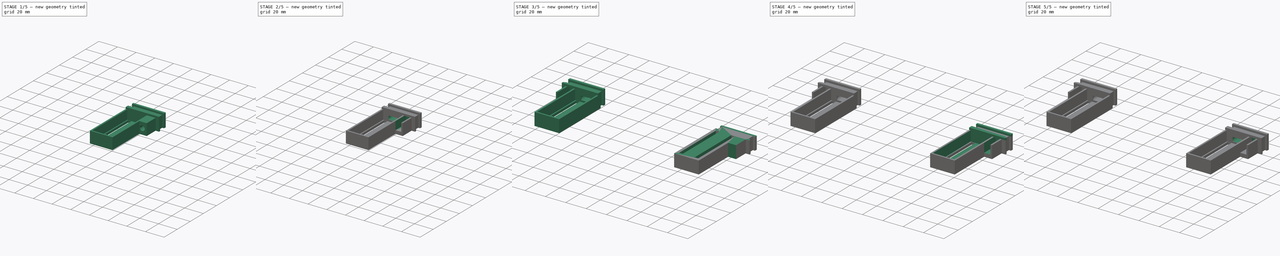
[diagram: build sequence overview — one tinted view per stage of 5, left to right]
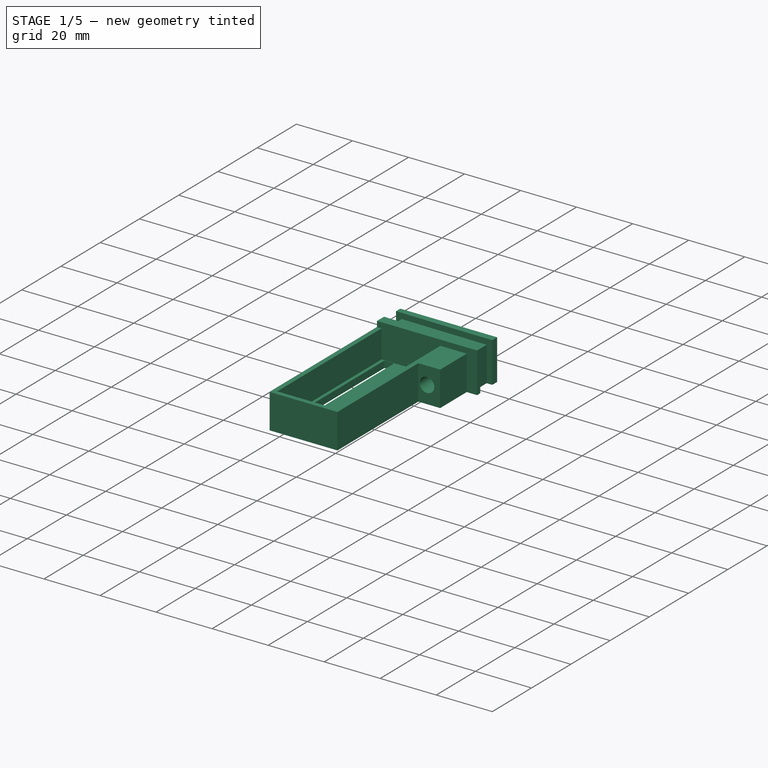
[diagram: stage 1 of 5 — iso view after this stage's code; geometry added in this stage tinted green]
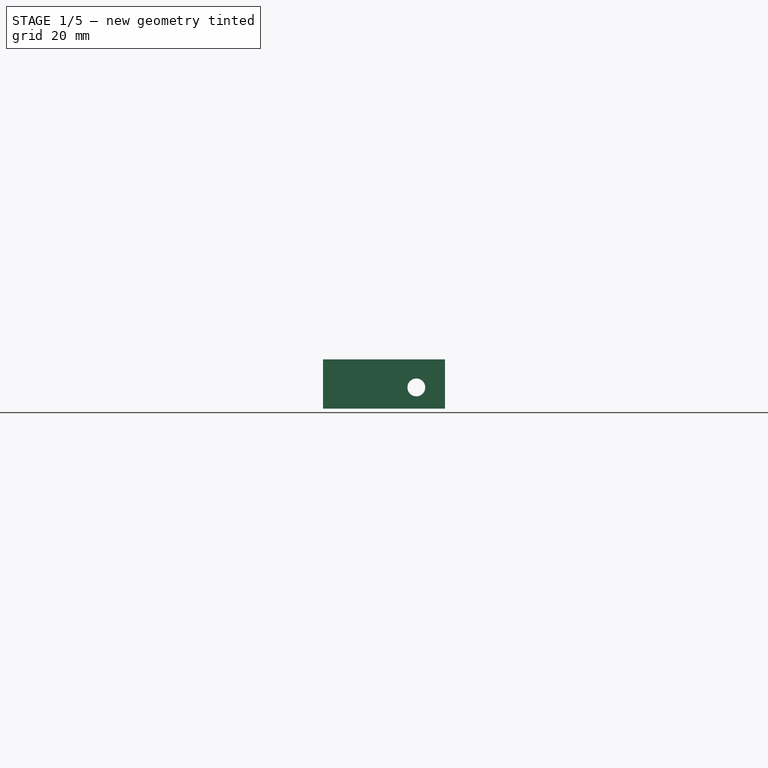
[diagram: stage 1 of 5 — front view after this stage's code; geometry added in this stage tinted green]
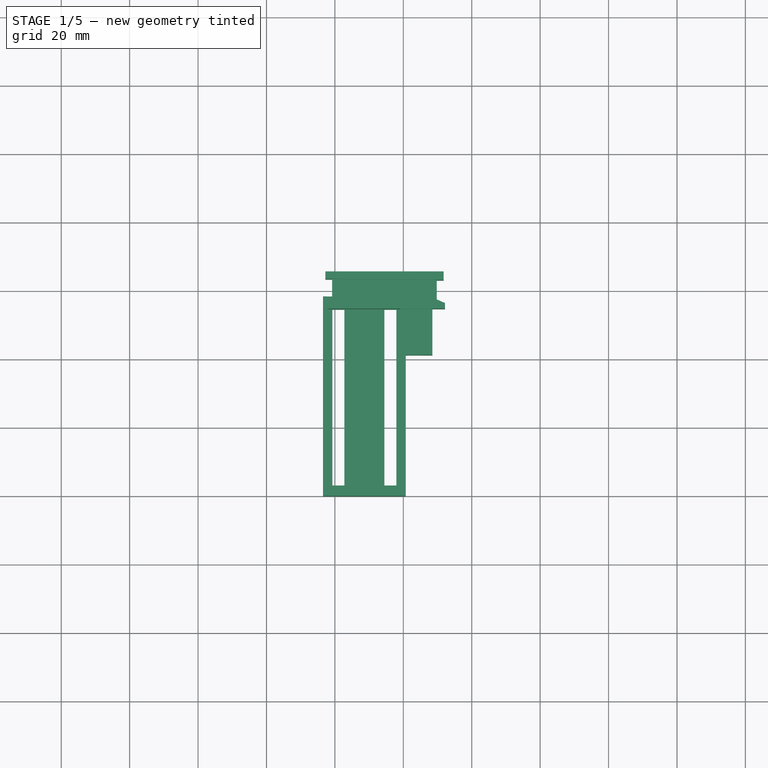
[diagram: stage 1 of 5 — top view after this stage's code; geometry added in this stage tinted green]
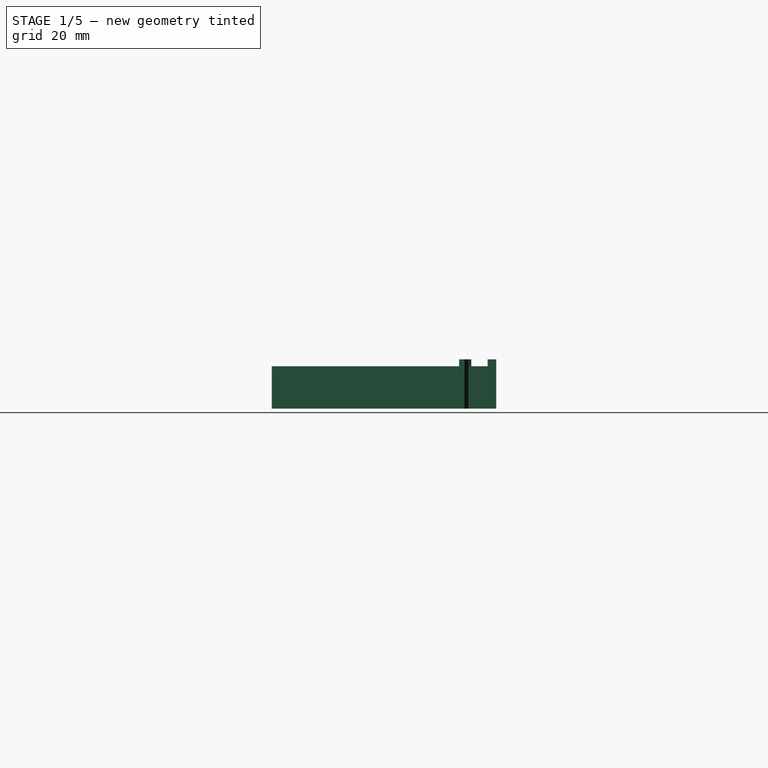
[diagram: stage 1 of 5 — right view after this stage's code; geometry added in this stage tinted green]
FCSTD DOCUMENT  (FreeCAD 0.21RUnknown)
Label: 4x6v6
License: All rights reserved
LicenseURL: http://en.wikipedia.org/wiki/All_rights_reserved
objects: Sketcher::SketchObject×16, PartDesign::Pocket×14, PartDesign::Pad×4, Part::Feature×3, PartDesign::Body×2, Part::Mirroring×1
note: 58 computed .brp shape members not serialized (recipe doc carries the construction recipe); baked Part::Feature solids carry a one-line shape summary decoded from their .brp

FEATURE [PartDesign::Body] Body001  label="左"
  Group = -> [Sketch008,Pad002,Sketch009,Pad003,Sketch010,Pocket006,Sketch011,Pocket007,Sketch012,Pocket008,Sketch013,Pocket009,Sketch014,Pocket010,Sketch015,Pocket011,Pocket]
  Origin = -> Origin001
  Tip = -> Pocket
FEATURE [Sketcher::SketchObject] Sketch016
  AttachmentOffset = pos=(0,0,0) rot=(0,1,0;3.14159rad)
  FullyConstrained = true
  MapMode = 5
  Placement = pos=(0,0,0) rot=(0,1,0;3.14159rad)
  Support = -> [XY_Plane002]
  sketch-geometry (47):
    g0: LineSegment StartX=-58.1056 StartY=34.5922 StartZ=0 EndX=-58.1056 EndY=-18.4078 EndZ=0
    g1: LineSegment StartX=-58.1056 StartY=-18.4078 StartZ=0 EndX=-79.1056 EndY=-18.4078 EndZ=0
    g2: LineSegment StartX=-79.1056 StartY=-18.4078 StartZ=0 EndX=-79.1056 EndY=34.5922 EndZ=0
    g3: LineSegment StartX=-72.6056 StartY=36.3922 StartZ=0 EndX=-64.6056 EndY=36.3922 EndZ=0
    g4: LineSegment StartX=-64.6056 StartY=36.3922 StartZ=0 EndX=-64.6056 EndY=34.5922 EndZ=0
    g5: LineSegment StartX=-64.6056 StartY=34.5922 StartZ=0 EndX=-72.6056 EndY=34.5922 EndZ=0
    g6: LineSegment StartX=-72.6056 StartY=34.5922 StartZ=0 EndX=-72.6056 EndY=36.3922 EndZ=0
    g7: LineSegment StartX=-79.1056 StartY=34.5922 StartZ=0 EndX=-72.6056 EndY=34.5922 EndZ=0
    g8: LineSegment StartX=-64.6056 StartY=34.5922 StartZ=0 EndX=-58.1056 EndY=34.5922 EndZ=0
    g9: LineSegment StartX=-89.8679 StartY=43.0074 StartZ=0 EndX=-59.1056 EndY=43.3126 EndZ=0
    g10: LineSegment StartX=-59.1056 StartY=43.3126 StartZ=0 EndX=-59.1056 EndY=38.3922 EndZ=0
    g11: LineSegment StartX=-59.1056 StartY=38.3922 StartZ=0 EndX=-89.8691 EndY=37.4859 EndZ=0
    g12: LineSegment StartX=-89.8691 StartY=37.4859 StartZ=0 EndX=-89.8679 EndY=43.0074 EndZ=0
    g13: LineSegment StartX=-89.7691 StartY=37.421 StartZ=0 EndX=-92.2056 EndY=36.3362 EndZ=0
    g14: LineSegment StartX=-86.7056 StartY=36.3126 StartZ=0 EndX=-80.7056 EndY=36.3126 EndZ=0
    g15: LineSegment StartX=-80.7056 StartY=36.3126 StartZ=0 EndX=-80.7056 EndY=22.8126 EndZ=0
    g16: LineSegment StartX=-80.7056 StartY=22.8126 StartZ=0 EndX=-86.7056 EndY=22.8126 EndZ=0
    g17: LineSegment StartX=-86.7056 StartY=22.8126 StartZ=0 EndX=-86.7056 EndY=36.3126 EndZ=0
    g18: LineSegment StartX=-56.5056 StartY=38.2922 StartZ=0 EndX=-59.2056 EndY=38.2922 EndZ=0
    g19: LineSegment StartX=-89.7691 StartY=37.421 StartZ=0 EndX=-89.7679 EndY=43.1083 EndZ=0
    g20: LineSegment StartX=-89.7679 StartY=43.1083 StartZ=0 EndX=-91.7678 EndY=43.0913 EndZ=0
    g21: LineSegment StartX=-91.7678 StartY=43.0913 StartZ=0 EndX=-91.7678 EndY=45.5913 EndZ=0
    g22: LineSegment StartX=-91.7678 StartY=45.5913 StartZ=0 EndX=-57.2056 EndY=45.5913 EndZ=0
    g23: LineSegment StartX=-57.2056 StartY=45.5913 StartZ=0 EndX=-57.2056 EndY=43.4126 EndZ=0
    g24: LineSegment StartX=-57.2056 StartY=43.4126 StartZ=0 EndX=-59.2056 EndY=43.4126 EndZ=0
    g25: LineSegment StartX=-59.2056 StartY=43.4126 StartZ=0 EndX=-59.2056 EndY=38.2922 EndZ=0
    g26: LineSegment StartX=-89.8691 StartY=37.4859 StartZ=0 EndX=-89.8284 EndY=37.3946 EndZ=0
    g27: LineSegment StartX=-89.8691 StartY=37.4859 StartZ=0 EndX=-89.7691 EndY=37.4859 EndZ=0
    g28: LineSegment StartX=-89.8687 StartY=43.1074 StartZ=0 EndX=-89.8679 EndY=43.0074 EndZ=0
    g29: LineSegment StartX=-89.8679 StartY=43.0074 StartZ=0 EndX=-89.7679 EndY=43.0074 EndZ=0
    g30: LineSegment StartX=-88.5056 StartY=21.2126 StartZ=0 EndX=-80.7056 EndY=21.2126 EndZ=0
    g31: LineSegment StartX=-80.7056 StartY=21.2126 StartZ=0 EndX=-80.7056 EndY=-20.0078 EndZ=0
    g32: LineSegment StartX=-80.7056 StartY=-20.0078 StartZ=0 EndX=-56.5056 EndY=-20.0078 EndZ=0
    g33: LineSegment StartX=-56.5056 StartY=-20.0078 StartZ=0 EndX=-56.5056 EndY=38.2922 EndZ=0
    g34: LineSegment StartX=-92.2056 StartY=36.3362 StartZ=0 EndX=-92.2056 EndY=34.7362 EndZ=0
    g35: LineSegment StartX=-92.2056 StartY=34.7362 StartZ=0 EndX=-88.5056 EndY=34.7362 EndZ=0
    g36: LineSegment StartX=-88.5056 StartY=34.7362 StartZ=0 EndX=-88.5056 EndY=21.2126 EndZ=0
    g37: LineSegment StartX=-77.9556 StartY=34.5722 StartZ=0 EndX=-74.4556 EndY=34.5722 EndZ=0
    g38: LineSegment StartX=-74.4556 StartY=34.5722 StartZ=0 EndX=-74.4556 EndY=-16.8078 EndZ=0
    g39: LineSegment StartX=-74.4556 StartY=-16.8078 StartZ=0 EndX=-77.9556 EndY=-16.8078 EndZ=0
    g40: LineSegment StartX=-77.9556 StartY=-16.8078 StartZ=0 EndX=-77.9556 EndY=34.5722 EndZ=0
    g41: LineSegment StartX=-62.7556 StartY=34.5722 StartZ=0 EndX=-59.2556 EndY=34.5722 EndZ=0
    g42: LineSegment StartX=-59.2556 StartY=34.5722 StartZ=0 EndX=-59.2556 EndY=-16.8078 EndZ=0
    g43: LineSegment StartX=-59.2556 StartY=-16.8078 StartZ=0 EndX=-62.7556 EndY=-16.8078 EndZ=0
    g44: LineSegment StartX=-62.7556 StartY=-16.8078 StartZ=0 EndX=-62.7556 EndY=34.5722 EndZ=0
    g45: LineSegment StartX=-79.1056 StartY=34.5922 StartZ=0 EndX=-77.9556 EndY=34.5722 EndZ=0
    g46: LineSegment StartX=-58.1056 StartY=34.5922 StartZ=0 EndX=-59.2556 EndY=34.5722 EndZ=0
  constraints (142):
    c: Coincident(g0,g1)
    c: Coincident(g1,g2)
    c: Horizontal(g1)
    c: Vertical(g0)
    c: Vertical(g2)
    c: Distance(g0) = 53
    c: Distance(g1) = 21
    c: Coincident(g3,g4)
    c: Coincident(g4,g5)
    c: Coincident(g6,g3)
    c: Horizontal(g3)
    c: Horizontal(g5)
    c: Vertical(g4)
    c: Vertical(g6)
    c: Distance(g4) = 1.8
    c: Distance(g3) = 8
    c: Coincident(g5,g6)
    c: Coincident(g7,g2)
    c: Coincident(g7,g5)
    c: Horizontal(g7)
    c: Coincident(g8,g4)
    c: Coincident(g8,g0)
    c: Horizontal(g8)
    c: Equal(g7,g8)
    c: Coincident(g9,g10)
    c: Coincident(g10,g11)
    c: Coincident(g11,g12)
    c: Coincident(g12,g9)
    c: Vertical(g10)
    c: DistanceY(g9) = 43.3126
    c: DistanceX(g10) = -59.1056
    c: DistanceY(g10) = 38.3922
    c: Coincident(g14,g15)
    c: Coincident(g15,g16)
    c: Coincident(g16,g17)
    c: Coincident(g17,g14)
    c: Horizontal(g14)
    c: Horizontal(g16)
    c: Vertical(g15)
    c: Vertical(g17)
    c: Distance(g15) = 13.5
    c: Distance(g16) = 6
    c: DistanceY(g14,g9) = 7
    c: Horizontal(g18)
    c: DistanceY(g18,g10) = 0.1
    c: DistanceX(g18,g10) = 0.1
    c: Coincident(g13,g19)
    c: Coincident(g19,g20)
    c: Coincident(g20,g21)
    c: Vertical(g21)
    c: Coincident(g21,g22)
    c: Horizontal(g22)
    c: Coincident(g22,g23)
    c: Vertical(g23)
    c: Coincident(g23,g24)
    c: Horizontal(g24)
    c: Coincident(g24,g25)
    c: Coincident(g25,g18)
    c: Vertical(g25)
    c: DistanceY(g9,g24) = 0.1
    c: Distance(g24) = 2
    c: Distance(g20) = 2
    c: Distance(g21) = 2.5
    c: Coincident(g26,g11)
    c: PointOnObject(g26,g13)
    c: Perpendicular(g13,g26)
    c: Coincident(g27,g11)
    c: PointOnObject(g27,g19)
    c: Perpendicular(g19,g27)
    c: Equal(g27,g26)
    c: Parallel(g19,g12)
    c: Distance(g26) = 0.1
    c: PointOnObject(g28,g20)
    c: Coincident(g28,g9)
    c: Coincident(g28,g29)
    c: PointOnObject(g29,g19)
    c: Perpendicular(g19,g29)
    c: Perpendicular(g20,g28)
    c: Equal(g29,g28)
    c: Angle(g20,g19) = 1.56207
    c: DistanceY(g3,g10) = 2
    c: Horizontal(g30)
    c: Coincident(g30,g31)
    c: Vertical(g31)
    c: Coincident(g31,g32)
    c: Horizontal(g32)
    c: Coincident(g32,g33)
    c: Vertical(g33)
    c: Coincident(g33,g18)
    c: DistanceY(g32,g0) = 1.6
    c: DistanceX(g0,g32) = 1.6
    c: DistanceX(g31,g1) = 1.6
    c: DistanceY(g30,g15) = 1.6
    c: Vertical(g15,g30)
    c: DistanceX(g3,g18) = 5.4
    c: DistanceX(g13,g14) = 3.06348
    c: Coincident(g13,g34)
    c: Vertical(g34)
    c: Coincident(g34,g35)
    c: Horizontal(g35)
    c: Coincident(g35,g36)
    c: Coincident(g36,g30)
    c: Vertical(g36)
    c: Angle(g34,g13) = 1.98968
    c: DistanceX(g30,g16) = 1.8
    c: Distance(g34) = 1.6
    c: Coincident(g37,g38)
    c: Coincident(g38,g39)
    c: Coincident(g39,g40)
    c: Coincident(g40,g37)
    c: Horizontal(g37)
    c: Horizontal(g39)
    c: Vertical(g38)
    c: Vertical(g40)
    c: Coincident(g41,g42)
    c: Coincident(g42,g43)
    c: Coincident(g43,g44)
    c: Coincident(g44,g41)
    c: Horizontal(g41)
    c: Horizontal(g43)
    c: Vertical(g42)
    c: Vertical(g44)
    c: Equal(g43,g39)
    c: Equal(g42,g38)
    c: Horizontal(g37,g41)
    c: Coincident(g45,g2)
    c: Coincident(g45,g37)
    c: Coincident(g46,g0)
    c: Coincident(g46,g41)
    c: Equal(g46,g45)
    c: Distance(g39) = 3.5
    c: DistanceX(g37,g41) = 11.7
    c: DistanceY(g37,g2) = 0.02
    c: DistanceX(g2,g37) = 1.15
    c: DistanceY(g1,g39) = 1.6
    c: Distance(g35) = 3.7
    c: DistanceX(g18,g18) = 2.7
    c: DistanceX(g11) = -89.8691
    c: DistanceY(g11) = 37.4859
    c: DistanceX(g9) = -89.8679
    c: DistanceY(g9) = 43.0074
    c: DistanceX(g13,g35) = 1.26348
FEATURE [PartDesign::Pad] Pad004
  Direction = (1e-16,2e-16,-1)
  Length = 12.4
  Length2 = 10
  Profile = -> Sketch016
  ReferenceAxis = -> Sketch016 [N_Axis]
  Reversed = true
  Type = 0
FEATURE [Sketcher::SketchObject] Sketch017
  ExternalGeometry = -> [Pad004]
  FullyConstrained = true
  MapMode = 5
  Placement = pos=(-1.5e-15,-2.5e-15,12.4) rot=(0,0,1;0rad)
  Support = -> [Pad004]
  sketch-geometry (11):
    g0: LineSegment StartX=92.2056 StartY=34.7362 StartZ=0 EndX=56.5056 EndY=34.7362 EndZ=0
    g1: LineSegment StartX=56.5056 StartY=34.7362 StartZ=0 EndX=56.5056 EndY=38.2922 EndZ=0
    g2: LineSegment StartX=92.2056 StartY=36.3362 StartZ=0 EndX=89.7691 EndY=37.421 EndZ=0
    g3: LineSegment StartX=56.5056 StartY=38.2922 StartZ=0 EndX=89.7691 EndY=37.421 EndZ=0
    g4: LineSegment StartX=92.2056 StartY=36.3362 StartZ=0 EndX=92.2056 EndY=34.7362 EndZ=0
    g5: LineSegment StartX=59.2056 StartY=43.4126 StartZ=0 EndX=57.2056 EndY=43.4126 EndZ=0
    g6: LineSegment StartX=57.2056 StartY=43.4126 StartZ=0 EndX=57.2056 EndY=45.5913 EndZ=0
    g7: LineSegment StartX=57.2056 StartY=45.5913 StartZ=0 EndX=91.7678 EndY=45.5913 EndZ=0
    g8: LineSegment StartX=91.7678 StartY=45.5913 StartZ=0 EndX=91.7678 EndY=43.0913 EndZ=0
    g9: LineSegment StartX=91.7678 StartY=43.0913 StartZ=0 EndX=89.7679 EndY=43.1083 EndZ=0
    g10: LineSegment StartX=89.7679 StartY=43.1083 StartZ=0 EndX=59.2056 EndY=43.4126 EndZ=0
  constraints (23):
    c: Coincident(g0,g1)
    c: Horizontal(g0)
    c: Vertical(g1)
    c: Coincident(g1,g-5)
    c: Coincident(g0,g-3)
    c: Coincident(g-4,g2)
    c: Coincident(g2,g-4)
    c: Coincident(g3,g1)
    c: Coincident(g3,g2)
    c: Coincident(g4,g2)
    c: Coincident(g4,g0)
    c: Coincident(g-10,g5)
    c: Coincident(g5,g-10)
    c: Coincident(g5,g6)
    c: Coincident(g6,g-9)
    c: Coincident(g6,g7)
    c: Coincident(g7,g-8)
    c: Coincident(g7,g8)
    c: Coincident(g8,g-7)
    c: Coincident(g8,g9)
    c: Coincident(g9,g-7)
    c: Coincident(g9,g10)
    c: Coincident(g10,g5)
FEATURE [PartDesign::Pad] Pad005
  BaseFeature = -> Pad004
  Direction = (-1e-16,-2e-16,1)
  Length = 2
  Length2 = 10
  Profile = -> Sketch017
  ReferenceAxis = -> Sketch017 [N_Axis]
  Type = 0
FEATURE [Sketcher::SketchObject] Sketch018
  ExternalGeometry = -> [Pad005]
  FullyConstrained = true
  MapMode = 5
  Placement = pos=(-1.5e-15,-2.5e-15,12.4) rot=(0,0,1;0rad)
  Support = -> [Pad005]
  sketch-geometry (4):
    g0: LineSegment StartX=58.1056 StartY=34.7362 StartZ=0 EndX=79.1056 EndY=34.7362 EndZ=0
    g1: LineSegment StartX=79.1056 StartY=34.7362 StartZ=0 EndX=79.1056 EndY=-18.4078 EndZ=0
    g2: LineSegment StartX=79.1056 StartY=-18.4078 StartZ=0 EndX=58.1056 EndY=-18.4078 EndZ=0
    g3: LineSegment StartX=58.1056 StartY=-18.4078 StartZ=0 EndX=58.1056 EndY=34.7362 EndZ=0
  constraints (12):
    c: Coincident(g0,g1)
    c: Coincident(g1,g2)
    c: Coincident(g2,g3)
    c: Coincident(g3,g0)
    c: Horizontal(g0)
    c: Horizontal(g2)
    c: Vertical(g1)
    c: Vertical(g3)
    c: DistanceY(g-3,g1) = 1.6
    c: DistanceX(g1,g-3) = 1.6
    c: DistanceX(g-3,g2) = 1.6
    c: Horizontal(g0,g-4)
FEATURE [PartDesign::Pocket] Pocket013
  BaseFeature = -> Pad005
  Direction = (1e-16,2e-16,-1)
  Length = 0
  Length2 = 5
  Offset = -2.4
  Profile = -> Sketch018
  ReferenceAxis = -> Sketch018 [N_Axis]
  Type = 3
  UpToFace = -> Pad005 [Face4]
FEATURE [Sketcher::SketchObject] Sketch019
  ExternalGeometry = -> [Pocket013]
  FullyConstrained = true
  MapMode = 5
  Placement = pos=(4.2e-15,21.2126,4.2e-15) rot=(1,0,0;1.5708rad)
  Support = -> [Pocket013]
  sketch-geometry (3):
    g0: Circle CenterX=83.8056 CenterY=6.2 CenterZ=0 NormalX=0 NormalY=0 NormalZ=1 AngleXU=0 Radius=2.6
    g1: LineSegment StartX=83.8056 StartY=6.2 StartZ=0 EndX=80.7056 EndY=12.4 EndZ=0
    g2: LineSegment StartX=80.7056 StartY=9.9e-15 StartZ=0 EndX=83.8056 EndY=6.2 EndZ=0
  constraints (7):
    c: Coincident(g2,g0)
    c: Equal(g1,g2)
    c: Diameter(g0) = 5.2
    c: Coincident(g0,g1)
    c: Coincident(g1,g-3)
    c: Coincident(g2,g-3)
    c: DistanceX(g2,g0) = 3.1
FEATURE [PartDesign::Pocket] Pocket014
  BaseFeature = -> Pocket013
  Direction = (2e-16,1,2e-16)
  Length = 5
  Length2 = 5
  Profile = -> Sketch019
  ReferenceAxis = -> Sketch019 [N_Axis]
  Type = 1
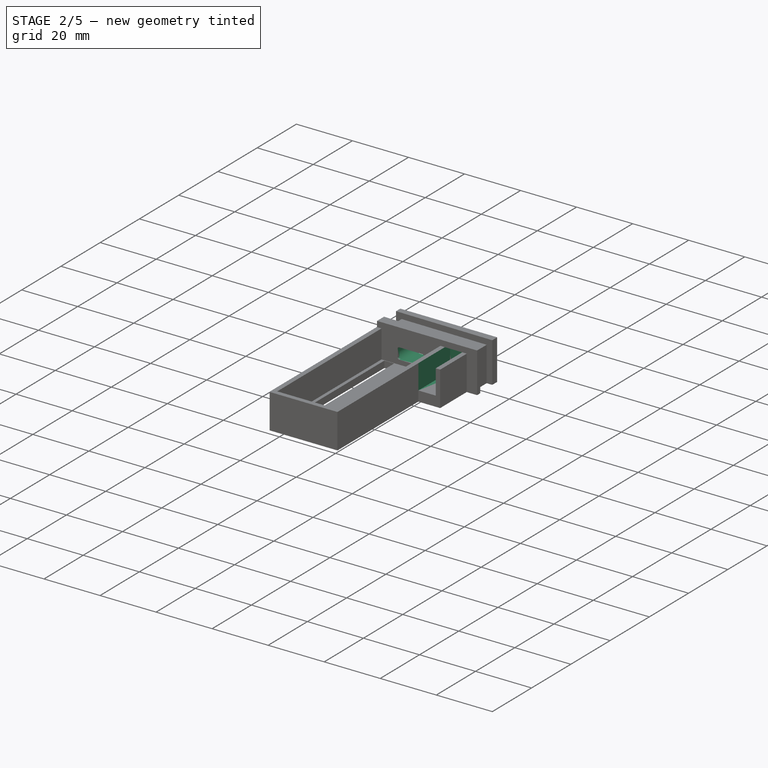
[diagram: stage 2 of 5 — iso view after this stage's code; geometry added in this stage tinted green]
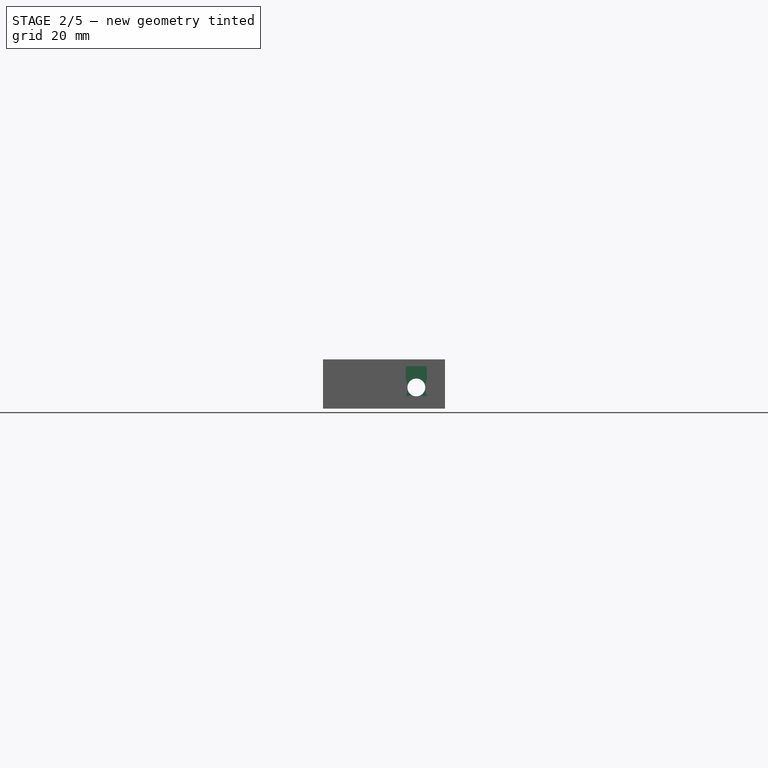
[diagram: stage 2 of 5 — front view after this stage's code; geometry added in this stage tinted green]
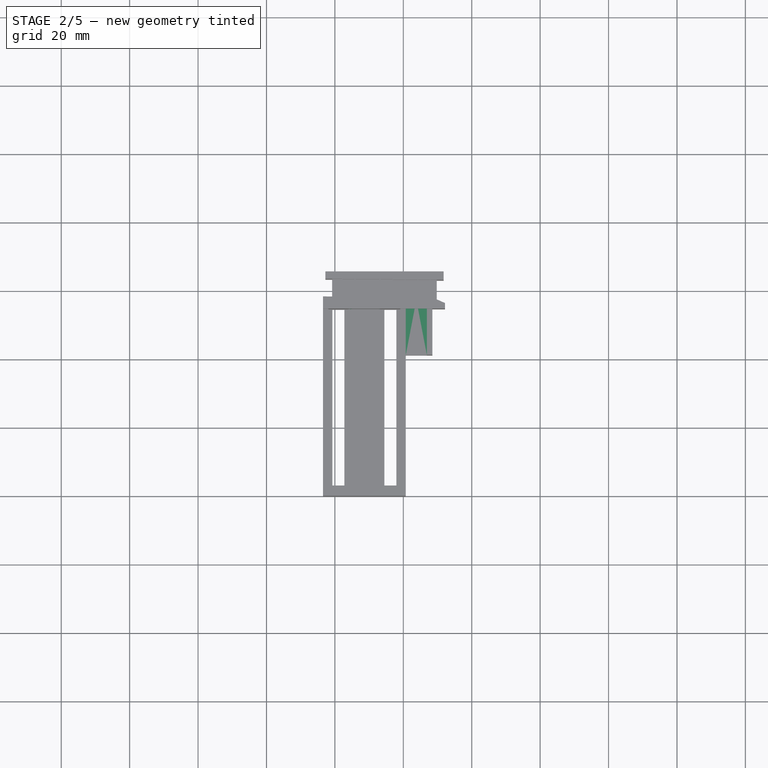
[diagram: stage 2 of 5 — top view after this stage's code; geometry added in this stage tinted green]
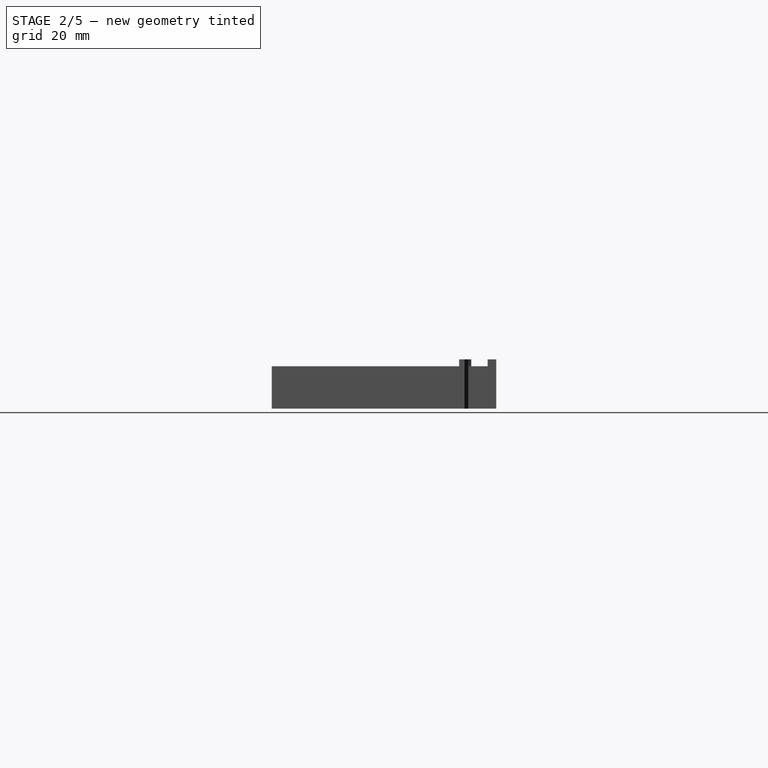
[diagram: stage 2 of 5 — right view after this stage's code; geometry added in this stage tinted green]
FEATURE [Sketcher::SketchObject] Sketch020
  ExternalGeometry = -> [Pocket014]
  FullyConstrained = false
  MapMode = 5
  Placement = pos=(4.2e-15,21.2126,4.2e-15) rot=(1,0,0;1.5708rad)
  Support = -> [Pocket014]
  sketch-geometry (8):
    g0: LineSegment StartX=86.9056 StartY=8.8 StartZ=0 EndX=86.9056 EndY=3.6 EndZ=0
    g1: LineSegment StartX=86.9056 StartY=3.6 StartZ=0 EndX=80.7056 EndY=3.6 EndZ=0
    g2: LineSegment StartX=80.7056 StartY=3.6 StartZ=0 EndX=80.7056 EndY=8.8 EndZ=0
    g3: LineSegment StartX=86.9056 StartY=3.6 StartZ=0 EndX=88.5056 EndY=1.07e-14 EndZ=0
    g4: LineSegment StartX=88.5056 StartY=12.4 StartZ=0 EndX=86.9056 EndY=8.8 EndZ=0
    g5: LineSegment StartX=80.7056 StartY=8.8 StartZ=0 EndX=80.7056 EndY=12.4 EndZ=0
    g6: LineSegment StartX=80.7056 StartY=12.4 StartZ=0 EndX=86.9056 EndY=12.4 EndZ=0
    g7: LineSegment StartX=86.9056 StartY=12.4 StartZ=0 EndX=86.9056 EndY=8.8 EndZ=0
  constraints (20):
    c: Coincident(g0,g1)
    c: Coincident(g1,g2)
    c: Horizontal(g1)
    c: Vertical(g0)
    c: Vertical(g2)
    c: Distance(g0) = 5.2
    c: Coincident(g0,g3)
    c: Coincident(g3,g-4)
    c: Coincident(g-3,g4)
    c: Coincident(g4,g0)
    c: Equal(g3,g4)
    c: Distance(g1) = 6.2
    c: Coincident(g2,g5)
    c: Vertical(g5)
    c: Coincident(g5,g6)
    c: PointOnObject(g6,g-3)
    c: Coincident(g6,g7)
    c: Coincident(g7,g0)
    c: Vertical(g7)
    c: Coincident(g5,g-3)
FEATURE [PartDesign::Pocket] Pocket015
  BaseFeature = -> Pocket014
  Direction = (2e-16,1,2e-16)
  Length = 0
  Length2 = 5
  Offset = 2.7
  Profile = -> Sketch020
  ReferenceAxis = -> Sketch020 [N_Axis]
  Type = 3
  UpToFace = -> Pocket014 [Face10]
FEATURE [Sketcher::SketchObject] Sketch021
  ExternalGeometry = -> [Pocket015]
  FullyConstrained = true
  MapMode = 5
  Placement = pos=(9.1e-15,45.5913,9.1e-15) rot=(0,0.707107,0.707107;3.14159rad)
  Support = -> [Pocket015]
  sketch-geometry (1):
    g0: Circle CenterX=-83.8056 CenterY=6.2 CenterZ=0 NormalX=0 NormalY=0 NormalZ=1 AngleXU=0 Radius=4.35
  constraints (2):
    c: Coincident(g0,g-3)
    c: Diameter(g0) = 8.7
FEATURE [PartDesign::Pocket] Pocket016
  BaseFeature = -> Pocket015
  Direction = (-2e-16,-1,-2e-16)
  Length = 4.1
  Length2 = 5
  Profile = -> Sketch021
  ReferenceAxis = -> Sketch021 [N_Axis]
  Type = 0
FEATURE [Sketcher::SketchObject] Sketch022
  ExternalGeometry = -> [Pocket016]
  FullyConstrained = true
  MapMode = 5
  Placement = pos=(0,34.7362,6.9e-15) rot=(1,0,0;1.5708rad)
  Support = -> [Pocket016]
  sketch-geometry (12):
    g0: LineSegment StartX=79.1056 StartY=2.4 StartZ=0 EndX=73.3556 EndY=4 EndZ=0
    g1: LineSegment StartX=63.8556 StartY=4 StartZ=0 EndX=58.1056 EndY=2.4 EndZ=0
    g2: ArcOfCircle CenterX=64.4556 CenterY=7.4 CenterZ=0 NormalX=0 NormalY=0 NormalZ=1 AngleXU=0 Radius=0.6 StartAngle=1.5708 EndAngle=3.14159
    g3: LineSegment StartX=64.4556 StartY=8 StartZ=0 EndX=72.7556 EndY=8 EndZ=0
    g4: ArcOfCircle CenterX=72.7556 CenterY=7.4 CenterZ=0 NormalX=0 NormalY=0 NormalZ=1 AngleXU=0 Radius=0.6 StartAngle=8e-16 EndAngle=1.5708
    g5: LineSegment StartX=73.3556 StartY=7.4 StartZ=0 EndX=73.3556 EndY=4.6 EndZ=0
    g6: ArcOfCircle CenterX=72.7556 CenterY=4.6 CenterZ=0 NormalX=0 NormalY=0 NormalZ=1 AngleXU=0 Radius=0.6 StartAngle=4.71239 EndAngle=6.28319
    g7: LineSegment StartX=72.7556 StartY=4 StartZ=0 EndX=64.4556 EndY=4 EndZ=0
    g8: ArcOfCircle CenterX=64.4556 CenterY=4.6 CenterZ=0 NormalX=0 NormalY=0 NormalZ=1 AngleXU=0 Radius=0.6 StartAngle=3.14159 EndAngle=4.71239
    g9: LineSegment StartX=63.8556 StartY=4.6 StartZ=0 EndX=63.8556 EndY=7.4 EndZ=0
    g10: GeomPoint X=63.8556 Y=8 Z=0
    g11: GeomPoint X=73.3556 Y=4 Z=0
  constraints (29):
    c: Coincident(g-3,g0)
    c: Coincident(g1,g-3)
    c: Equal(g0,g1)
    c: Tangent(g2,g3) = 1.5708
    c: Tangent(g3,g4) = 1.5708
    c: Tangent(g4,g5) = 1.5708
    c: Tangent(g5,g6) = 1.5708
    c: Tangent(g6,g7) = 1.5708
    c: Tangent(g7,g8) = 1.5708
    c: Tangent(g8,g9) = 1.5708
    c: Tangent(g9,g2) = 1.5708
    c: Horizontal(g3)
    c: Horizontal(g7)
    c: Vertical(g5)
    c: Vertical(g9)
    c: Equal(g2,g4)
    c: Equal(g4,g6)
    c: Equal(g6,g8)
    c: PointOnObject(g10,g3)
    c: PointOnObject(g10,g9)
    c: PointOnObject(g11,g5)
    c: PointOnObject(g11,g7)
    c: Coincident(g11,g0)
    c: Vertical(g1,g10)
    c: Distance(g5,g8) = 9.5
    c: Distance(g6,g3) = 4
    c: Horizontal(g1,g0)
    c: DistanceY(g1,g7) = 1.6
    c: Diameter(g6) = 1.2
FEATURE [PartDesign::Pocket] Pocket017
  BaseFeature = -> Pocket016
  Direction = (0,1,2e-16)
  Length = 5
  Length2 = 5
  Profile = -> Sketch022
  ReferenceAxis = -> Sketch022 [N_Axis]
  Type = 1
FEATURE [Sketcher::SketchObject] Sketch023
  ExternalGeometry = -> [Pocket017]
  FullyConstrained = true
  MapMode = 5
  Placement = pos=(9.1e-15,45.5913,9.1e-15) rot=(0,0.707107,0.707107;3.14159rad)
  Support = -> [Pocket017]
  sketch-geometry (10):
    g0: ArcOfCircle CenterX=-72.7556 CenterY=7.4 CenterZ=0 NormalX=0 NormalY=0 NormalZ=1 AngleXU=0 Radius=2.85 StartAngle=1.5708 EndAngle=3.14159
    g1: LineSegment StartX=-72.7556 StartY=10.25 StartZ=0 EndX=-64.4556 EndY=10.25 EndZ=0
    g2: ArcOfCircle CenterX=-64.4556 CenterY=7.4 CenterZ=0 NormalX=0 NormalY=0 NormalZ=1 AngleXU=0 Radius=2.85 StartAngle=1e-16 EndAngle=1.5708
    g3: LineSegment StartX=-61.6056 StartY=7.4 StartZ=0 EndX=-61.6056 EndY=4.6 EndZ=0
    g4: ArcOfCircle CenterX=-64.4556 CenterY=4.6 CenterZ=0 NormalX=0 NormalY=0 NormalZ=1 AngleXU=0 Radius=2.85 StartAngle=4.71239 EndAngle=6.28319
    g5: LineSegment StartX=-64.4556 StartY=1.75 StartZ=0 EndX=-72.7556 EndY=1.75 EndZ=0
    g6: ArcOfCircle CenterX=-72.7556 CenterY=4.6 CenterZ=0 NormalX=0 NormalY=0 NormalZ=1 AngleXU=0 Radius=2.85 StartAngle=3.14159 EndAngle=4.71239
    g7: LineSegment StartX=-75.6056 StartY=4.6 StartZ=0 EndX=-75.6056 EndY=7.4 EndZ=0
    g8: GeomPoint X=-75.6056 Y=10.25 Z=0
    g9: GeomPoint X=-61.6056 Y=1.75 Z=0
  constraints (21):
    c: Tangent(g0,g1) = 1.5708
    c: Tangent(g1,g2) = 1.5708
    c: Tangent(g2,g3) = 1.5708
    c: Tangent(g3,g4) = 1.5708
    c: Tangent(g4,g5) = 1.5708
    c: Tangent(g5,g6) = 1.5708
    c: Tangent(g6,g7) = 1.5708
    c: Tangent(g7,g0) = 1.5708
    c: Horizontal(g1)
    c: Horizontal(g5)
    c: Vertical(g3)
    c: Vertical(g7)
    c: Equal(g0,g2)
    c: PointOnObject(g8,g1)
    c: PointOnObject(g8,g7)
    c: PointOnObject(g9,g3)
    c: PointOnObject(g9,g5)
    c: Coincident(g-3,g4)
    c: Coincident(g2,g-4)
    c: Coincident(g6,g-5)
    c: Distance(g2,g0) = 14
FEATURE [PartDesign::Pocket] Pocket018
  BaseFeature = -> Pocket017
  Direction = (-2e-16,-1,-2e-16)
  Length = 0
  Length2 = 5
  Offset = -0.8
  Profile = -> Sketch023
  ReferenceAxis = -> Sketch023 [N_Axis]
  Type = 3
  UpToFace = -> Pocket017 [Face59]
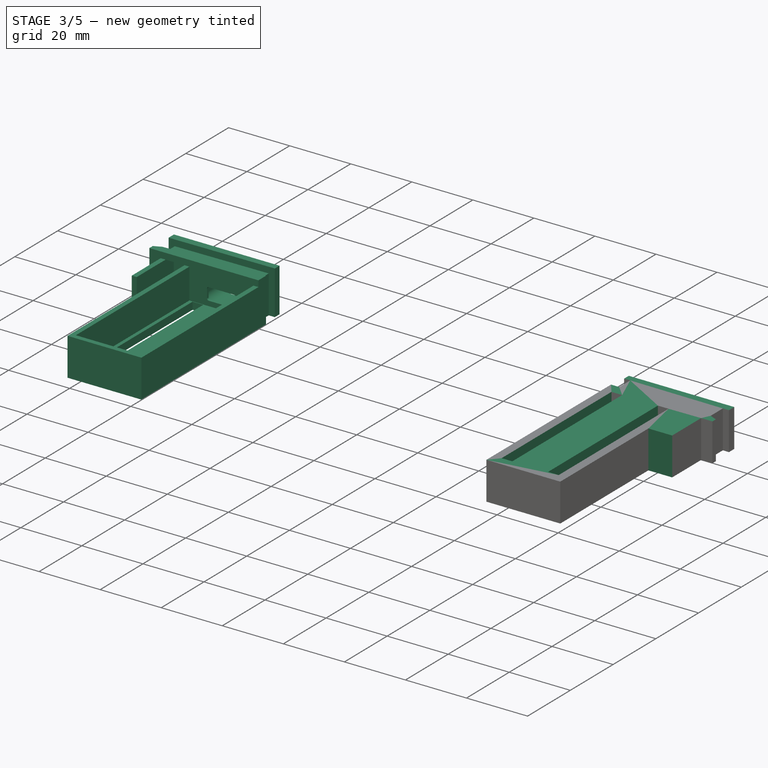
[diagram: stage 3 of 5 — iso view after this stage's code; geometry added in this stage tinted green]
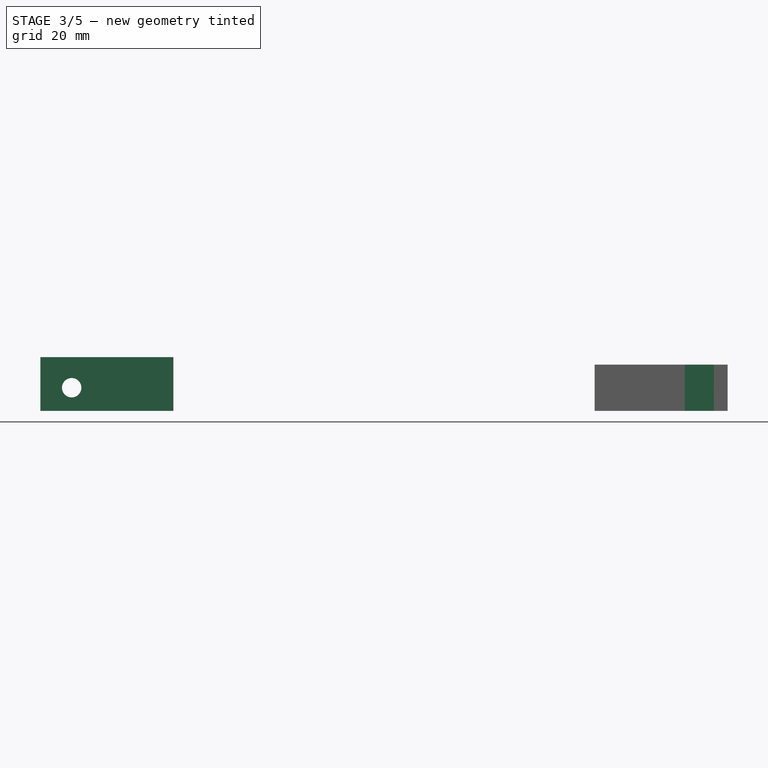
[diagram: stage 3 of 5 — front view after this stage's code; geometry added in this stage tinted green]
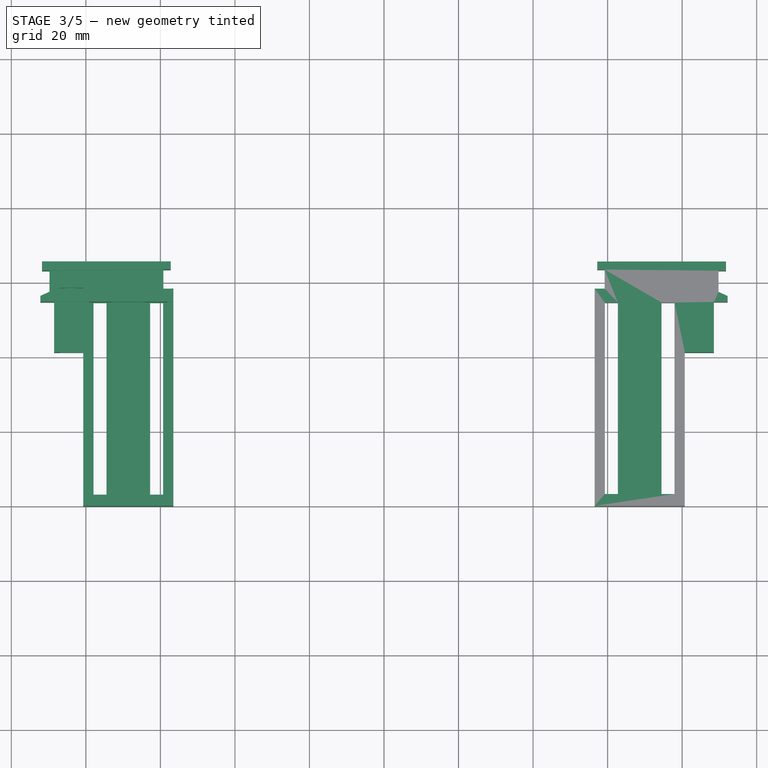
[diagram: stage 3 of 5 — top view after this stage's code; geometry added in this stage tinted green]
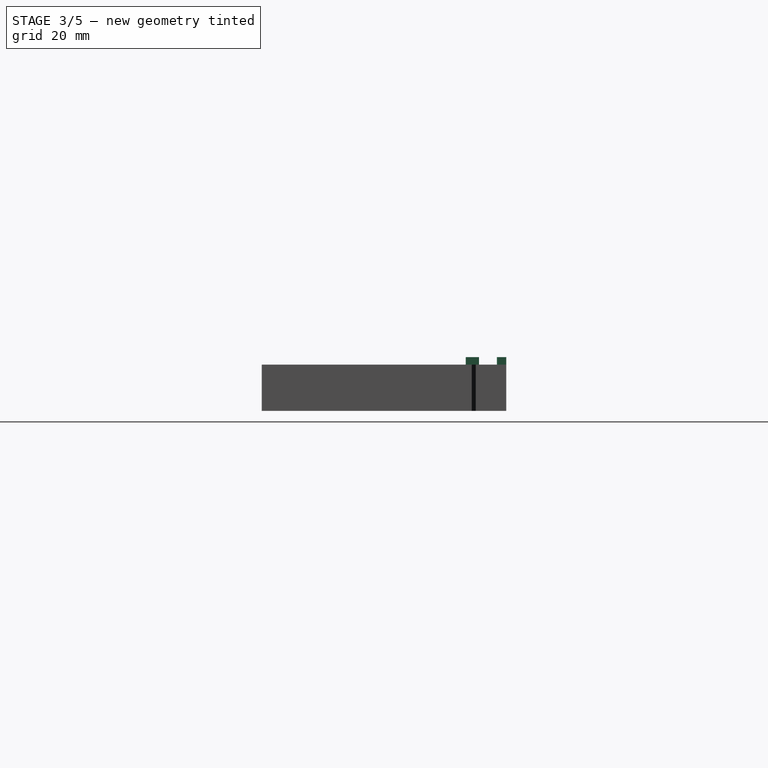
[diagram: stage 3 of 5 — right view after this stage's code; geometry added in this stage tinted green]
FEATURE [Part::Feature] loligagger_external_holder_promicro_v2001
  Placement = pos=(-74,23,0) rot=(0,0,1;0rad)
  shape: bbox 33 x 43.2 x 15 mm, 1742 faces, 0 solids (baked)
FEATURE [Part::Feature] manuform_case_left_Full_Key001
  shape: bbox 155.9 x 151.5 x 49.86 mm, 8936 faces, 0 solids (baked)
FEATURE [Part::Feature] manuform_case_right_Full_Key002  label="manuform_case_right_Full_Key001"
  shape: bbox 155.9 x 151.5 x 49.86 mm, 8932 faces, 0 solids (baked)
FEATURE [Sketcher::SketchObject] Sketch008
  AttachmentOffset = pos=(0,0,0) rot=(0,1,0;3.14159rad)
  FullyConstrained = true
  MapMode = 5
  Placement = pos=(0,0,0) rot=(0,1,0;3.14159rad)
  Support = -> [XY_Plane001]
  sketch-geometry (47):
    g0: LineSegment StartX=-58.1056 StartY=34.5922 StartZ=0 EndX=-58.1056 EndY=-18.4078 EndZ=0
    g1: LineSegment StartX=-58.1056 StartY=-18.4078 StartZ=0 EndX=-79.1056 EndY=-18.4078 EndZ=0
    g2: LineSegment StartX=-79.1056 StartY=-18.4078 StartZ=0 EndX=-79.1056 EndY=34.5922 EndZ=0
    g3: LineSegment StartX=-72.6056 StartY=36.3922 StartZ=0 EndX=-64.6056 EndY=36.3922 EndZ=0
    g4: LineSegment StartX=-64.6056 StartY=36.3922 StartZ=0 EndX=-64.6056 EndY=34.5922 EndZ=0
    g5: LineSegment StartX=-64.6056 StartY=34.5922 StartZ=0 EndX=-72.6056 EndY=34.5922 EndZ=0
    g6: LineSegment StartX=-72.6056 StartY=34.5922 StartZ=0 EndX=-72.6056 EndY=36.3922 EndZ=0
    g7: LineSegment StartX=-79.1056 StartY=34.5922 StartZ=0 EndX=-72.6056 EndY=34.5922 EndZ=0
    g8: LineSegment StartX=-64.6056 StartY=34.5922 StartZ=0 EndX=-58.1056 EndY=34.5922 EndZ=0
    g9: LineSegment StartX=-89.8679 StartY=43.0074 StartZ=0 EndX=-59.1056 EndY=43.3126 EndZ=0
    g10: LineSegment StartX=-59.1056 StartY=43.3126 StartZ=0 EndX=-59.1056 EndY=38.3922 EndZ=0
    g11: LineSegment StartX=-59.1056 StartY=38.3922 StartZ=0 EndX=-89.8691 EndY=37.4859 EndZ=0
    g12: LineSegment StartX=-89.8691 StartY=37.4859 StartZ=0 EndX=-89.8679 EndY=43.0074 EndZ=0
    g13: LineSegment StartX=-89.7691 StartY=37.421 StartZ=0 EndX=-92.2056 EndY=36.3362 EndZ=0
    g14: LineSegment StartX=-86.7056 StartY=36.3126 StartZ=0 EndX=-80.7056 EndY=36.3126 EndZ=0
    g15: LineSegment StartX=-80.7056 StartY=36.3126 StartZ=0 EndX=-80.7056 EndY=22.8126 EndZ=0
    g16: LineSegment StartX=-80.7056 StartY=22.8126 StartZ=0 EndX=-86.7056 EndY=22.8126 EndZ=0
    g17: LineSegment StartX=-86.7056 StartY=22.8126 StartZ=0 EndX=-86.7056 EndY=36.3126 EndZ=0
    g18: LineSegment StartX=-56.5056 StartY=38.2922 StartZ=0 EndX=-59.2056 EndY=38.2922 EndZ=0
    g19: LineSegment StartX=-89.7691 StartY=37.421 StartZ=0 EndX=-89.7679 EndY=43.1083 EndZ=0
    g20: LineSegment StartX=-89.7679 StartY=43.1083 StartZ=0 EndX=-91.7678 EndY=43.0913 EndZ=0
    g21: LineSegment StartX=-91.7678 StartY=43.0913 StartZ=0 EndX=-91.7678 EndY=45.5913 EndZ=0
    g22: LineSegment StartX=-91.7678 StartY=45.5913 StartZ=0 EndX=-57.2056 EndY=45.5913 EndZ=0
    g23: LineSegment StartX=-57.2056 StartY=45.5913 StartZ=0 EndX=-57.2056 EndY=43.4126 EndZ=0
    g24: LineSegment StartX=-57.2056 StartY=43.4126 StartZ=0 EndX=-59.2056 EndY=43.4126 EndZ=0
    g25: LineSegment StartX=-59.2056 StartY=43.4126 StartZ=0 EndX=-59.2056 EndY=38.2922 EndZ=0
    g26: LineSegment StartX=-89.8691 StartY=37.4859 StartZ=0 EndX=-89.8284 EndY=37.3946 EndZ=0
    g27: LineSegment StartX=-89.8691 StartY=37.4859 StartZ=0 EndX=-89.7691 EndY=37.4859 EndZ=0
    g28: LineSegment StartX=-89.8687 StartY=43.1074 StartZ=0 EndX=-89.8679 EndY=43.0074 EndZ=0
    g29: LineSegment StartX=-89.8679 StartY=43.0074 StartZ=0 EndX=-89.7679 EndY=43.0074 EndZ=0
    g30: LineSegment StartX=-88.5056 StartY=21.2126 StartZ=0 EndX=-80.7056 EndY=21.2126 EndZ=0
    g31: LineSegment StartX=-80.7056 StartY=21.2126 StartZ=0 EndX=-80.7056 EndY=-20.0078 EndZ=0
    g32: LineSegment StartX=-80.7056 StartY=-20.0078 StartZ=0 EndX=-56.5056 EndY=-20.0078 EndZ=0
    g33: LineSegment StartX=-56.5056 StartY=-20.0078 StartZ=0 EndX=-56.5056 EndY=38.2922 EndZ=0
    g34: LineSegment StartX=-92.2056 StartY=36.3362 StartZ=0 EndX=-92.2056 EndY=34.7362 EndZ=0
    g35: LineSegment StartX=-92.2056 StartY=34.7362 StartZ=0 EndX=-88.5056 EndY=34.7362 EndZ=0
    g36: LineSegment StartX=-88.5056 StartY=34.7362 StartZ=0 EndX=-88.5056 EndY=21.2126 EndZ=0
    g37: LineSegment StartX=-77.9556 StartY=34.5722 StartZ=0 EndX=-74.4556 EndY=34.5722 EndZ=0
    g38: LineSegment StartX=-74.4556 StartY=34.5722 StartZ=0 EndX=-74.4556 EndY=-16.8078 EndZ=0
    g39: LineSegment StartX=-74.4556 StartY=-16.8078 StartZ=0 EndX=-77.9556 EndY=-16.8078 EndZ=0
    g40: LineSegment StartX=-77.9556 StartY=-16.8078 StartZ=0 EndX=-77.9556 EndY=34.5722 EndZ=0
    g41: LineSegment StartX=-62.7556 StartY=34.5722 StartZ=0 EndX=-59.2556 EndY=34.5722 EndZ=0
    g42: LineSegment StartX=-59.2556 StartY=34.5722 StartZ=0 EndX=-59.2556 EndY=-16.8078 EndZ=0
    g43: LineSegment StartX=-59.2556 StartY=-16.8078 StartZ=0 EndX=-62.7556 EndY=-16.8078 EndZ=0
    g44: LineSegment StartX=-62.7556 StartY=-16.8078 StartZ=0 EndX=-62.7556 EndY=34.5722 EndZ=0
    g45: LineSegment StartX=-79.1056 StartY=34.5922 StartZ=0 EndX=-77.9556 EndY=34.5722 EndZ=0
    g46: LineSegment StartX=-58.1056 StartY=34.5922 StartZ=0 EndX=-59.2556 EndY=34.5722 EndZ=0
  constraints (142):
    c: Coincident(g0,g1)
    c: Coincident(g1,g2)
    c: Horizontal(g1)
    c: Vertical(g0)
    c: Vertical(g2)
    c: Distance(g0) = 53
    c: Distance(g1) = 21
    c: Coincident(g3,g4)
    c: Coincident(g4,g5)
    c: Coincident(g6,g3)
    c: Horizontal(g3)
    c: Horizontal(g5)
    c: Vertical(g4)
    c: Vertical(g6)
    c: Distance(g4) = 1.8
    c: Distance(g3) = 8
    c: Coincident(g5,g6)
    c: Coincident(g7,g2)
    c: Coincident(g7,g5)
    c: Horizontal(g7)
    c: Coincident(g8,g4)
    c: Coincident(g8,g0)
    c: Horizontal(g8)
    c: Equal(g7,g8)
    c: Coincident(g9,g10)
    c: Coincident(g10,g11)
    c: Coincident(g11,g12)
    c: Coincident(g12,g9)
    c: Vertical(g10)
    c: DistanceY(g9) = 43.3126
    c: DistanceX(g10) = -59.1056
    c: DistanceY(g10) = 38.3922
    c: Coincident(g14,g15)
    c: Coincident(g15,g16)
    c: Coincident(g16,g17)
    c: Coincident(g17,g14)
    c: Horizontal(g14)
    c: Horizontal(g16)
    c: Vertical(g15)
    c: Vertical(g17)
    c: Distance(g15) = 13.5
    c: Distance(g16) = 6
    c: DistanceY(g14,g9) = 7
    c: Horizontal(g18)
    c: DistanceY(g18,g10) = 0.1
    c: DistanceX(g18,g10) = 0.1
    c: Coincident(g13,g19)
    c: Coincident(g19,g20)
    c: Coincident(g20,g21)
    c: Vertical(g21)
    c: Coincident(g21,g22)
    c: Horizontal(g22)
    c: Coincident(g22,g23)
    c: Vertical(g23)
    c: Coincident(g23,g24)
    c: Horizontal(g24)
    c: Coincident(g24,g25)
    c: Coincident(g25,g18)
    c: Vertical(g25)
    c: DistanceY(g9,g24) = 0.1
    c: Distance(g24) = 2
    c: Distance(g20) = 2
    c: Distance(g21) = 2.5
    c: Coincident(g26,g11)
    c: PointOnObject(g26,g13)
    c: Perpendicular(g13,g26)
    c: Coincident(g27,g11)
    c: PointOnObject(g27,g19)
    c: Perpendicular(g19,g27)
    c: Equal(g27,g26)
    c: Parallel(g19,g12)
    c: Distance(g26) = 0.1
    c: PointOnObject(g28,g20)
    c: Coincident(g28,g9)
    c: Coincident(g28,g29)
    c: PointOnObject(g29,g19)
    c: Perpendicular(g19,g29)
    c: Perpendicular(g20,g28)
    c: Equal(g29,g28)
    c: Angle(g20,g19) = 1.56207
    c: DistanceY(g3,g10) = 2
    c: Horizontal(g30)
    c: Coincident(g30,g31)
    c: Vertical(g31)
    c: Coincident(g31,g32)
    c: Horizontal(g32)
    c: Coincident(g32,g33)
    c: Vertical(g33)
    c: Coincident(g33,g18)
    c: DistanceY(g32,g0) = 1.6
    c: DistanceX(g0,g32) = 1.6
    c: DistanceX(g31,g1) = 1.6
    c: DistanceY(g30,g15) = 1.6
    c: Vertical(g15,g30)
    c: DistanceX(g3,g18) = 5.4
    c: DistanceX(g13,g14) = 3.06348
    c: Coincident(g13,g34)
    c: Vertical(g34)
    c: Coincident(g34,g35)
    c: Horizontal(g35)
    c: Coincident(g35,g36)
    c: Coincident(g36,g30)
    c: Vertical(g36)
    c: Angle(g34,g13) = 1.98968
    c: DistanceX(g30,g16) = 1.8
    c: Distance(g34) = 1.6
    c: Coincident(g37,g38)
    c: Coincident(g38,g39)
    c: Coincident(g39,g40)
    c: Coincident(g40,g37)
    c: Horizontal(g37)
    c: Horizontal(g39)
    c: Vertical(g38)
    c: Vertical(g40)
    c: Coincident(g41,g42)
    c: Coincident(g42,g43)
    c: Coincident(g43,g44)
    c: Coincident(g44,g41)
    c: Horizontal(g41)
    c: Horizontal(g43)
    c: Vertical(g42)
    c: Vertical(g44)
    c: Equal(g43,g39)
    c: Equal(g42,g38)
    c: Horizontal(g37,g41)
    c: Coincident(g45,g2)
    c: Coincident(g45,g37)
    c: Coincident(g46,g0)
    c: Coincident(g46,g41)
    c: Equal(g46,g45)
    c: Distance(g39) = 3.5
    c: DistanceX(g37,g41) = 11.7
    c: DistanceY(g37,g2) = 0.02
    c: DistanceX(g2,g37) = 1.15
    c: DistanceY(g1,g39) = 1.6
    c: Distance(g35) = 3.7
    c: DistanceX(g18,g18) = 2.7
    c: DistanceX(g11) = -89.8691
    c: DistanceY(g11) = 37.4859
    c: DistanceX(g9) = -89.8679
    c: DistanceY(g9) = 43.0074
    c: DistanceX(g13,g35) = 1.26348
FEATURE [PartDesign::Pad] Pad002
  Direction = (1e-16,2e-16,-1)
  Length = 12.4
  Length2 = 10
  Profile = -> Sketch008
  ReferenceAxis = -> Sketch008 [N_Axis]
  Reversed = true
  Type = 0
FEATURE [PartDesign::Pocket] Pocket012
  BaseFeature = -> Pocket018
  Direction = (2e-16,1,2e-16)
  Length = 1.09
  Length2 = 5
  Profile = -> Pocket018 [Face60]
  Refine = true
  Type = 0
FEATURE [PartDesign::Body] Body002  label="左001"
  Group = -> [Sketch016,Pad004,Sketch017,Pad005,Sketch018,Pocket013,Sketch019,Pocket014,Sketch020,Pocket015,Sketch021,Pocket016,Sketch022,Pocket017,Sketch023,Pocket018,Pocket012]
  Origin = -> Origin002
  Tip = -> Pocket012
FEATURE [Part::Mirroring] Part__Mirroring  label="左001 (Mirror #1)"
  Base = (0,0,0)
  Normal = (1,0,0)
  Source = -> Body002
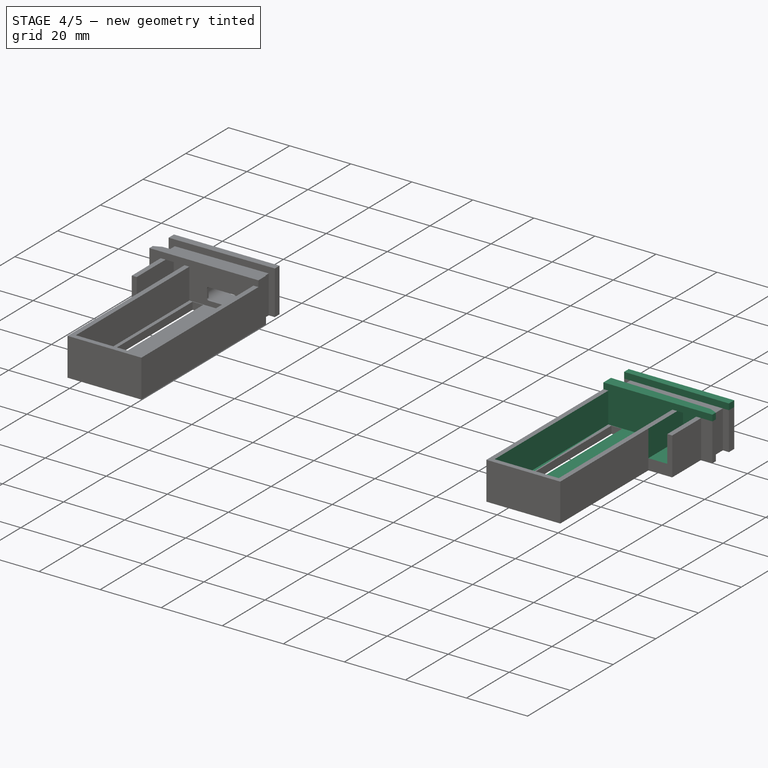
[diagram: stage 4 of 5 — iso view after this stage's code; geometry added in this stage tinted green]
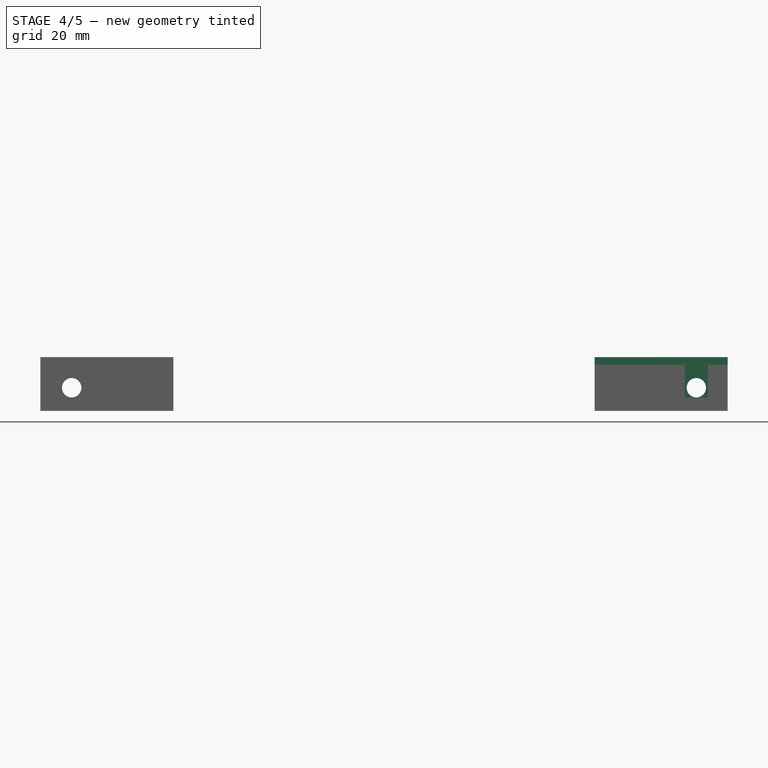
[diagram: stage 4 of 5 — front view after this stage's code; geometry added in this stage tinted green]
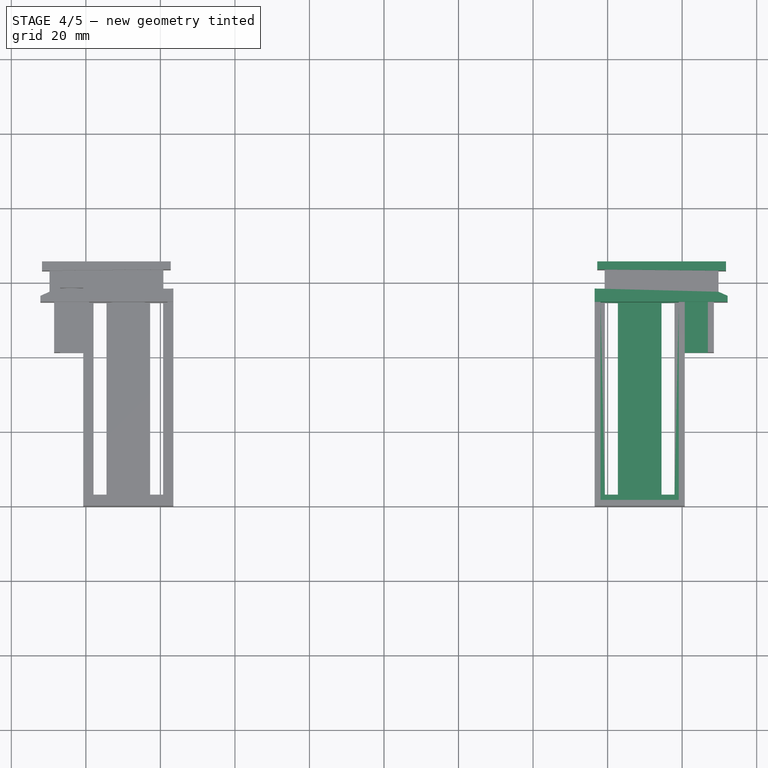
[diagram: stage 4 of 5 — top view after this stage's code; geometry added in this stage tinted green]
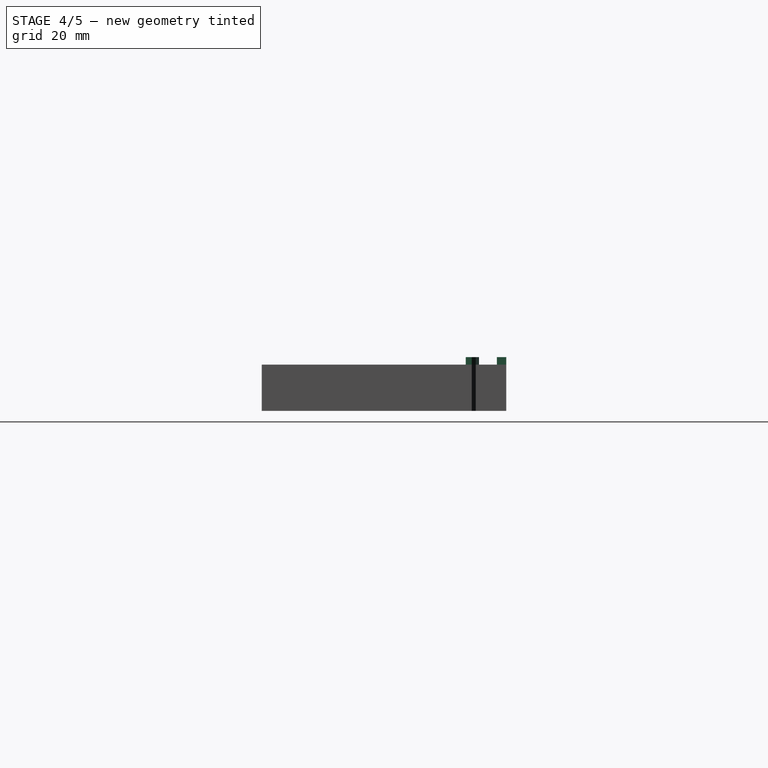
[diagram: stage 4 of 5 — right view after this stage's code; geometry added in this stage tinted green]
FEATURE [Sketcher::SketchObject] Sketch009
  ExternalGeometry = -> [Pad002]
  FullyConstrained = true
  MapMode = 5
  Placement = pos=(-1.5e-15,-2.5e-15,12.4) rot=(0,0,1;0rad)
  Support = -> [Pad002]
  sketch-geometry (11):
    g0: LineSegment StartX=92.2056 StartY=34.7362 StartZ=0 EndX=56.5056 EndY=34.7362 EndZ=0
    g1: LineSegment StartX=56.5056 StartY=34.7362 StartZ=0 EndX=56.5056 EndY=38.2922 EndZ=0
    g2: LineSegment StartX=92.2056 StartY=36.3362 StartZ=0 EndX=89.7691 EndY=37.421 EndZ=0
    g3: LineSegment StartX=56.5056 StartY=38.2922 StartZ=0 EndX=89.7691 EndY=37.421 EndZ=0
    g4: LineSegment StartX=92.2056 StartY=36.3362 StartZ=0 EndX=92.2056 EndY=34.7362 EndZ=0
    g5: LineSegment StartX=59.2056 StartY=43.4126 StartZ=0 EndX=57.2056 EndY=43.4126 EndZ=0
    g6: LineSegment StartX=57.2056 StartY=43.4126 StartZ=0 EndX=57.2056 EndY=45.5913 EndZ=0
    g7: LineSegment StartX=57.2056 StartY=45.5913 StartZ=0 EndX=91.7678 EndY=45.5913 EndZ=0
    g8: LineSegment StartX=91.7678 StartY=45.5913 StartZ=0 EndX=91.7678 EndY=43.0913 EndZ=0
    g9: LineSegment StartX=91.7678 StartY=43.0913 StartZ=0 EndX=89.7679 EndY=43.1083 EndZ=0
    g10: LineSegment StartX=89.7679 StartY=43.1083 StartZ=0 EndX=59.2056 EndY=43.4126 EndZ=0
  constraints (23):
    c: Coincident(g0,g1)
    c: Horizontal(g0)
    c: Vertical(g1)
    c: Coincident(g1,g-5)
    c: Coincident(g0,g-3)
    c: Coincident(g-4,g2)
    c: Coincident(g2,g-4)
    c: Coincident(g3,g1)
    c: Coincident(g3,g2)
    c: Coincident(g4,g2)
    c: Coincident(g4,g0)
    c: Coincident(g-10,g5)
    c: Coincident(g5,g-10)
    c: Coincident(g5,g6)
    c: Coincident(g6,g-9)
    c: Coincident(g6,g7)
    c: Coincident(g7,g-8)
    c: Coincident(g7,g8)
    c: Coincident(g8,g-7)
    c: Coincident(g8,g9)
    c: Coincident(g9,g-7)
    c: Coincident(g9,g10)
    c: Coincident(g10,g5)
FEATURE [PartDesign::Pad] Pad003
  BaseFeature = -> Pad002
  Direction = (-1e-16,-2e-16,1)
  Length = 2
  Length2 = 10
  Profile = -> Sketch009
  ReferenceAxis = -> Sketch009 [N_Axis]
  Type = 0
FEATURE [Sketcher::SketchObject] Sketch010
  ExternalGeometry = -> [Pad003]
  FullyConstrained = true
  MapMode = 5
  Placement = pos=(-1.5e-15,-2.5e-15,12.4) rot=(0,0,1;0rad)
  Support = -> [Pad003]
  sketch-geometry (4):
    g0: LineSegment StartX=58.1056 StartY=34.7362 StartZ=0 EndX=79.1056 EndY=34.7362 EndZ=0
    g1: LineSegment StartX=79.1056 StartY=34.7362 StartZ=0 EndX=79.1056 EndY=-18.4078 EndZ=0
    g2: LineSegment StartX=79.1056 StartY=-18.4078 StartZ=0 EndX=58.1056 EndY=-18.4078 EndZ=0
    g3: LineSegment StartX=58.1056 StartY=-18.4078 StartZ=0 EndX=58.1056 EndY=34.7362 EndZ=0
  constraints (12):
    c: Coincident(g0,g1)
    c: Coincident(g1,g2)
    c: Coincident(g2,g3)
    c: Coincident(g3,g0)
    c: Horizontal(g0)
    c: Horizontal(g2)
    c: Vertical(g1)
    c: Vertical(g3)
    c: DistanceY(g-3,g1) = 1.6
    c: DistanceX(g1,g-3) = 1.6
    c: DistanceX(g-3,g2) = 1.6
    c: Horizontal(g0,g-4)
FEATURE [PartDesign::Pocket] Pocket006
  BaseFeature = -> Pad003
  Direction = (1e-16,2e-16,-1)
  Length = 0
  Length2 = 5
  Offset = -2.4
  Profile = -> Sketch010
  ReferenceAxis = -> Sketch010 [N_Axis]
  Type = 3
  UpToFace = -> Pad003 [Face4]
FEATURE [Sketcher::SketchObject] Sketch011
  ExternalGeometry = -> [Pocket006]
  FullyConstrained = true
  MapMode = 5
  Placement = pos=(4.2e-15,21.2126,4.2e-15) rot=(1,0,0;1.5708rad)
  Support = -> [Pocket006]
  sketch-geometry (3):
    g0: Circle CenterX=83.8056 CenterY=6.2 CenterZ=0 NormalX=0 NormalY=0 NormalZ=1 AngleXU=0 Radius=2.6
    g1: LineSegment StartX=83.8056 StartY=6.2 StartZ=0 EndX=80.7056 EndY=12.4 EndZ=0
    g2: LineSegment StartX=80.7056 StartY=9.9e-15 StartZ=0 EndX=83.8056 EndY=6.2 EndZ=0
  constraints (7):
    c: Coincident(g2,g0)
    c: Equal(g1,g2)
    c: Diameter(g0) = 5.2
    c: Coincident(g0,g1)
    c: Coincident(g1,g-3)
    c: Coincident(g2,g-3)
    c: DistanceX(g2,g0) = 3.1
FEATURE [PartDesign::Pocket] Pocket007
  BaseFeature = -> Pocket006
  Direction = (2e-16,1,2e-16)
  Length = 5
  Length2 = 5
  Profile = -> Sketch011
  ReferenceAxis = -> Sketch011 [N_Axis]
  Type = 1
FEATURE [Sketcher::SketchObject] Sketch012
  ExternalGeometry = -> [Pocket007]
  FullyConstrained = false
  MapMode = 5
  Placement = pos=(4.2e-15,21.2126,4.2e-15) rot=(1,0,0;1.5708rad)
  Support = -> [Pocket007]
  sketch-geometry (8):
    g0: LineSegment StartX=86.9056 StartY=8.8 StartZ=0 EndX=86.9056 EndY=3.6 EndZ=0
    g1: LineSegment StartX=86.9056 StartY=3.6 StartZ=0 EndX=80.7056 EndY=3.6 EndZ=0
    g2: LineSegment StartX=80.7056 StartY=3.6 StartZ=0 EndX=80.7056 EndY=8.8 EndZ=0
    g3: LineSegment StartX=86.9056 StartY=3.6 StartZ=0 EndX=88.5056 EndY=1.07e-14 EndZ=0
    g4: LineSegment StartX=88.5056 StartY=12.4 StartZ=0 EndX=86.9056 EndY=8.8 EndZ=0
    g5: LineSegment StartX=80.7056 StartY=8.8 StartZ=0 EndX=80.7056 EndY=12.4 EndZ=0
    g6: LineSegment StartX=80.7056 StartY=12.4 StartZ=0 EndX=86.9056 EndY=12.4 EndZ=0
    g7: LineSegment StartX=86.9056 StartY=12.4 StartZ=0 EndX=86.9056 EndY=8.8 EndZ=0
  constraints (20):
    c: Coincident(g0,g1)
    c: Coincident(g1,g2)
    c: Horizontal(g1)
    c: Vertical(g0)
    c: Vertical(g2)
    c: Distance(g0) = 5.2
    c: Coincident(g0,g3)
    c: Coincident(g3,g-4)
    c: Coincident(g-3,g4)
    c: Coincident(g4,g0)
    c: Equal(g3,g4)
    c: Distance(g1) = 6.2
    c: Coincident(g2,g5)
    c: Vertical(g5)
    c: Coincident(g5,g6)
    c: PointOnObject(g6,g-3)
    c: Coincident(g6,g7)
    c: Coincident(g7,g0)
    c: Vertical(g7)
    c: Coincident(g5,g-3)
FEATURE [PartDesign::Pocket] Pocket008
  BaseFeature = -> Pocket007
  Direction = (2e-16,1,2e-16)
  Length = 0
  Length2 = 5
  Offset = 2.7
  Profile = -> Sketch012
  ReferenceAxis = -> Sketch012 [N_Axis]
  Type = 3
  UpToFace = -> Pocket007 [Face10]
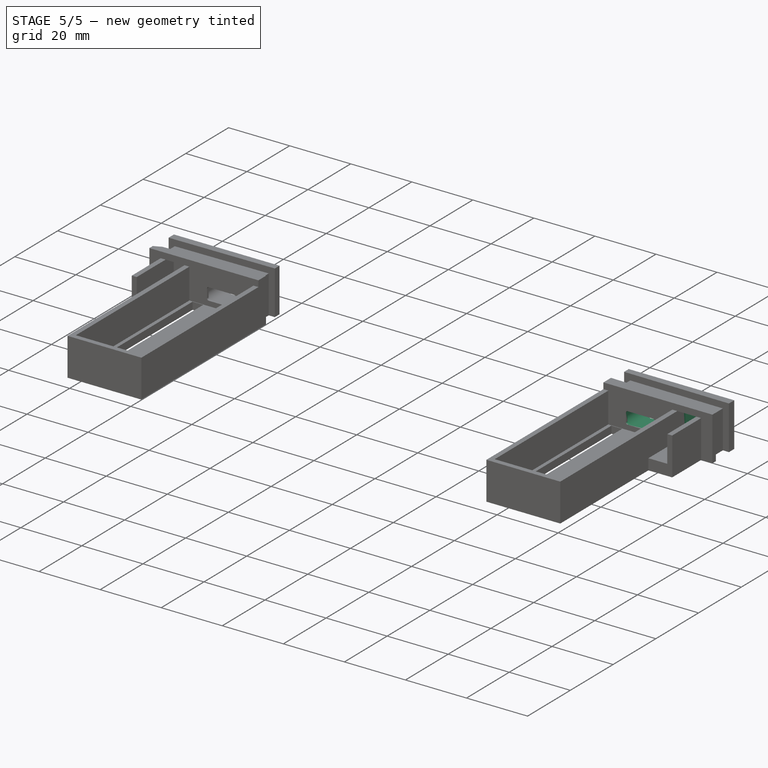
[diagram: stage 5 of 5 — iso view after this stage's code; geometry added in this stage tinted green]
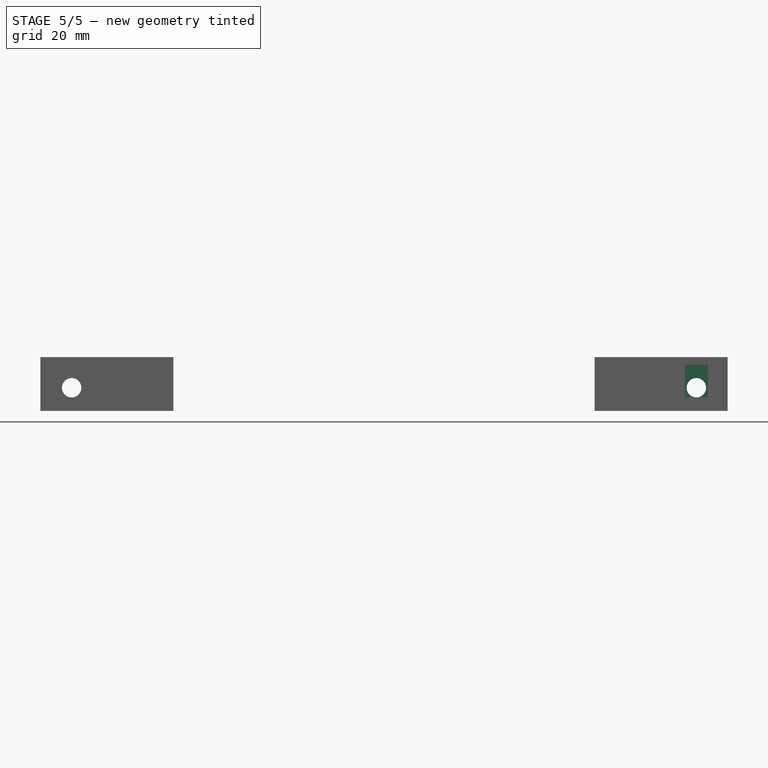
[diagram: stage 5 of 5 — front view after this stage's code; geometry added in this stage tinted green]
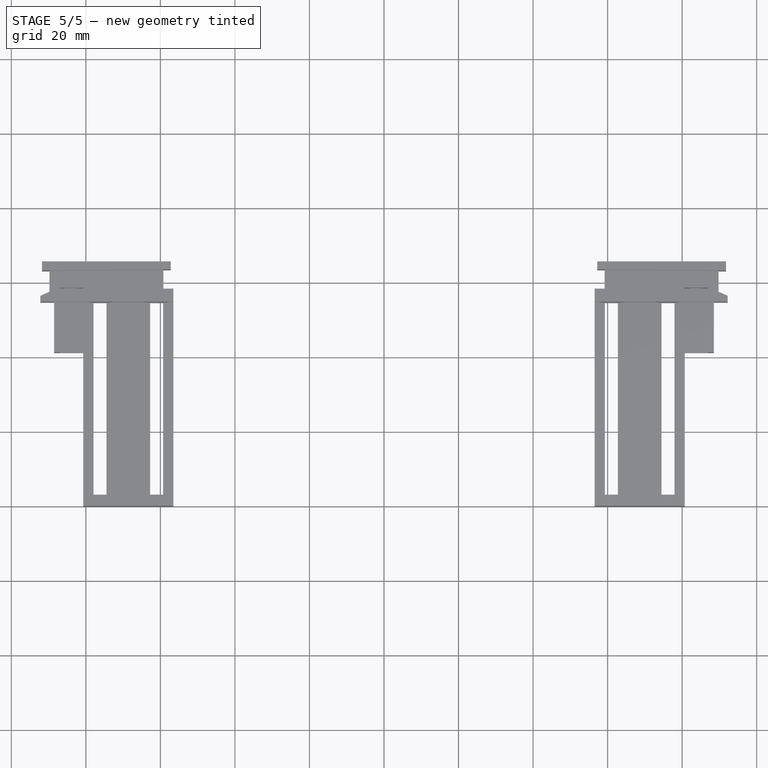
[diagram: stage 5 of 5 — top view after this stage's code; geometry added in this stage tinted green]
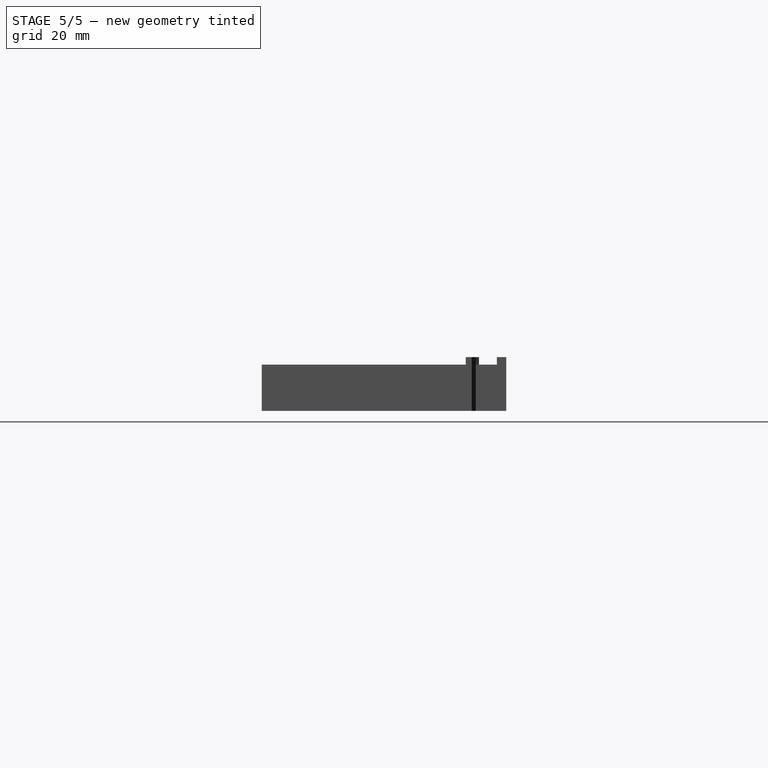
[diagram: stage 5 of 5 — right view after this stage's code; geometry added in this stage tinted green]
FEATURE [Sketcher::SketchObject] Sketch013
  ExternalGeometry = -> [Pocket008]
  FullyConstrained = true
  MapMode = 5
  Placement = pos=(9.1e-15,45.5913,9.1e-15) rot=(0,0.707107,0.707107;3.14159rad)
  Support = -> [Pocket008]
  sketch-geometry (1):
    g0: Circle CenterX=-83.8056 CenterY=6.2 CenterZ=0 NormalX=0 NormalY=0 NormalZ=1 AngleXU=0 Radius=4.35
  constraints (2):
    c: Coincident(g0,g-3)
    c: Diameter(g0) = 8.7
FEATURE [PartDesign::Pocket] Pocket009
  BaseFeature = -> Pocket008
  Direction = (-2e-16,-1,-2e-16)
  Length = 4.1
  Length2 = 5
  Profile = -> Sketch013
  ReferenceAxis = -> Sketch013 [N_Axis]
  Type = 0
FEATURE [Sketcher::SketchObject] Sketch014
  ExternalGeometry = -> [Pocket009]
  FullyConstrained = true
  MapMode = 5
  Placement = pos=(0,34.7362,6.9e-15) rot=(1,0,0;1.5708rad)
  Support = -> [Pocket009]
  sketch-geometry (12):
    g0: LineSegment StartX=79.1056 StartY=2.4 StartZ=0 EndX=73.3556 EndY=4 EndZ=0
    g1: LineSegment StartX=63.8556 StartY=4 StartZ=0 EndX=58.1056 EndY=2.4 EndZ=0
    g2: ArcOfCircle CenterX=64.4556 CenterY=7.4 CenterZ=0 NormalX=0 NormalY=0 NormalZ=1 AngleXU=0 Radius=0.6 StartAngle=1.5708 EndAngle=3.14159
    g3: LineSegment StartX=64.4556 StartY=8 StartZ=0 EndX=72.7556 EndY=8 EndZ=0
    g4: ArcOfCircle CenterX=72.7556 CenterY=7.4 CenterZ=0 NormalX=0 NormalY=0 NormalZ=1 AngleXU=0 Radius=0.6 StartAngle=8e-16 EndAngle=1.5708
    g5: LineSegment StartX=73.3556 StartY=7.4 StartZ=0 EndX=73.3556 EndY=4.6 EndZ=0
    g6: ArcOfCircle CenterX=72.7556 CenterY=4.6 CenterZ=0 NormalX=0 NormalY=0 NormalZ=1 AngleXU=0 Radius=0.6 StartAngle=4.71239 EndAngle=6.28319
    g7: LineSegment StartX=72.7556 StartY=4 StartZ=0 EndX=64.4556 EndY=4 EndZ=0
    g8: ArcOfCircle CenterX=64.4556 CenterY=4.6 CenterZ=0 NormalX=0 NormalY=0 NormalZ=1 AngleXU=0 Radius=0.6 StartAngle=3.14159 EndAngle=4.71239
    g9: LineSegment StartX=63.8556 StartY=4.6 StartZ=0 EndX=63.8556 EndY=7.4 EndZ=0
    g10: GeomPoint X=63.8556 Y=8 Z=0
    g11: GeomPoint X=73.3556 Y=4 Z=0
  constraints (29):
    c: Coincident(g-3,g0)
    c: Coincident(g1,g-3)
    c: Equal(g0,g1)
    c: Tangent(g2,g3) = 1.5708
    c: Tangent(g3,g4) = 1.5708
    c: Tangent(g4,g5) = 1.5708
    c: Tangent(g5,g6) = 1.5708
    c: Tangent(g6,g7) = 1.5708
    c: Tangent(g7,g8) = 1.5708
    c: Tangent(g8,g9) = 1.5708
    c: Tangent(g9,g2) = 1.5708
    c: Horizontal(g3)
    c: Horizontal(g7)
    c: Vertical(g5)
    c: Vertical(g9)
    c: Equal(g2,g4)
    c: Equal(g4,g6)
    c: Equal(g6,g8)
    c: PointOnObject(g10,g3)
    c: PointOnObject(g10,g9)
    c: PointOnObject(g11,g5)
    c: PointOnObject(g11,g7)
    c: Coincident(g11,g0)
    c: Vertical(g1,g10)
    c: Distance(g5,g8) = 9.5
    c: Distance(g6,g3) = 4
    c: Horizontal(g1,g0)
    c: DistanceY(g1,g7) = 1.6
    c: Diameter(g6) = 1.2
FEATURE [PartDesign::Pocket] Pocket010
  BaseFeature = -> Pocket009
  Direction = (0,1,2e-16)
  Length = 5
  Length2 = 5
  Profile = -> Sketch014
  ReferenceAxis = -> Sketch014 [N_Axis]
  Type = 1
FEATURE [Sketcher::SketchObject] Sketch015
  ExternalGeometry = -> [Pocket010]
  FullyConstrained = true
  MapMode = 5
  Placement = pos=(9.1e-15,45.5913,9.1e-15) rot=(0,0.707107,0.707107;3.14159rad)
  Support = -> [Pocket010]
  sketch-geometry (10):
    g0: ArcOfCircle CenterX=-72.7556 CenterY=7.4 CenterZ=0 NormalX=0 NormalY=0 NormalZ=1 AngleXU=0 Radius=2.85 StartAngle=1.5708 EndAngle=3.14159
    g1: LineSegment StartX=-72.7556 StartY=10.25 StartZ=0 EndX=-64.4556 EndY=10.25 EndZ=0
    g2: ArcOfCircle CenterX=-64.4556 CenterY=7.4 CenterZ=0 NormalX=0 NormalY=0 NormalZ=1 AngleXU=0 Radius=2.85 StartAngle=1e-16 EndAngle=1.5708
    g3: LineSegment StartX=-61.6056 StartY=7.4 StartZ=0 EndX=-61.6056 EndY=4.6 EndZ=0
    g4: ArcOfCircle CenterX=-64.4556 CenterY=4.6 CenterZ=0 NormalX=0 NormalY=0 NormalZ=1 AngleXU=0 Radius=2.85 StartAngle=4.71239 EndAngle=6.28319
    g5: LineSegment StartX=-64.4556 StartY=1.75 StartZ=0 EndX=-72.7556 EndY=1.75 EndZ=0
    g6: ArcOfCircle CenterX=-72.7556 CenterY=4.6 CenterZ=0 NormalX=0 NormalY=0 NormalZ=1 AngleXU=0 Radius=2.85 StartAngle=3.14159 EndAngle=4.71239
    g7: LineSegment StartX=-75.6056 StartY=4.6 StartZ=0 EndX=-75.6056 EndY=7.4 EndZ=0
    g8: GeomPoint X=-75.6056 Y=10.25 Z=0
    g9: GeomPoint X=-61.6056 Y=1.75 Z=0
  constraints (21):
    c: Tangent(g0,g1) = 1.5708
    c: Tangent(g1,g2) = 1.5708
    c: Tangent(g2,g3) = 1.5708
    c: Tangent(g3,g4) = 1.5708
    c: Tangent(g4,g5) = 1.5708
    c: Tangent(g5,g6) = 1.5708
    c: Tangent(g6,g7) = 1.5708
    c: Tangent(g7,g0) = 1.5708
    c: Horizontal(g1)
    c: Horizontal(g5)
    c: Vertical(g3)
    c: Vertical(g7)
    c: Equal(g0,g2)
    c: PointOnObject(g8,g1)
    c: PointOnObject(g8,g7)
    c: PointOnObject(g9,g3)
    c: PointOnObject(g9,g5)
    c: Coincident(g-3,g4)
    c: Coincident(g2,g-4)
    c: Coincident(g6,g-5)
    c: Distance(g2,g0) = 14
FEATURE [PartDesign::Pocket] Pocket011
  BaseFeature = -> Pocket010
  Direction = (-2e-16,-1,-2e-16)
  Length = 0
  Length2 = 5
  Offset = -0.8
  Profile = -> Sketch015
  ReferenceAxis = -> Sketch015 [N_Axis]
  Type = 3
  UpToFace = -> Pocket010 [Face59]
FEATURE [PartDesign::Pocket] Pocket
  BaseFeature = -> Pocket011
  Direction = (2e-16,1,2e-16)
  Length = 1.09
  Length2 = 5
  Profile = -> Pocket011 [Face60]
  Refine = true
  Type = 0
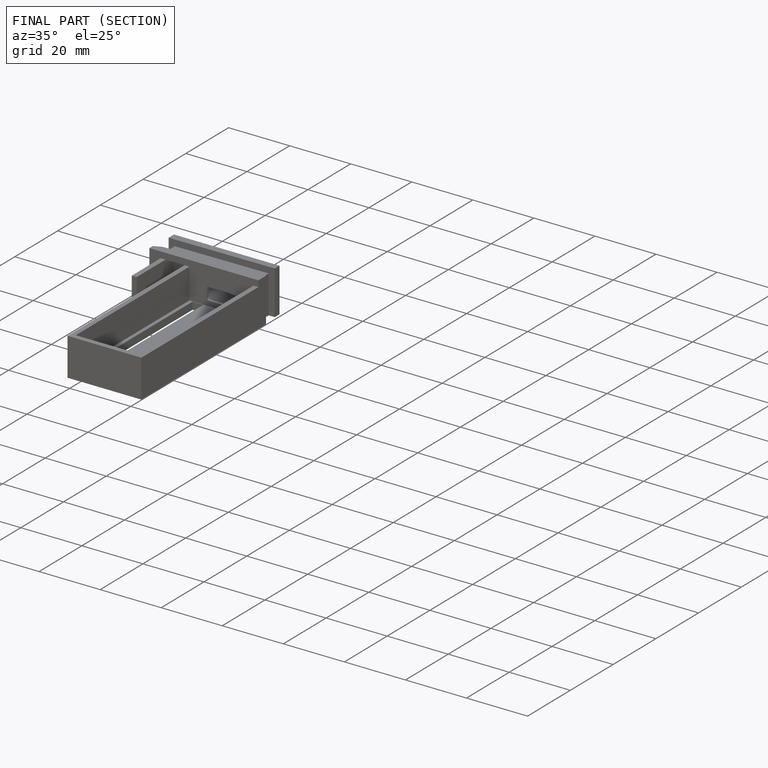
[diagram: finished part — half-section view (interior)]
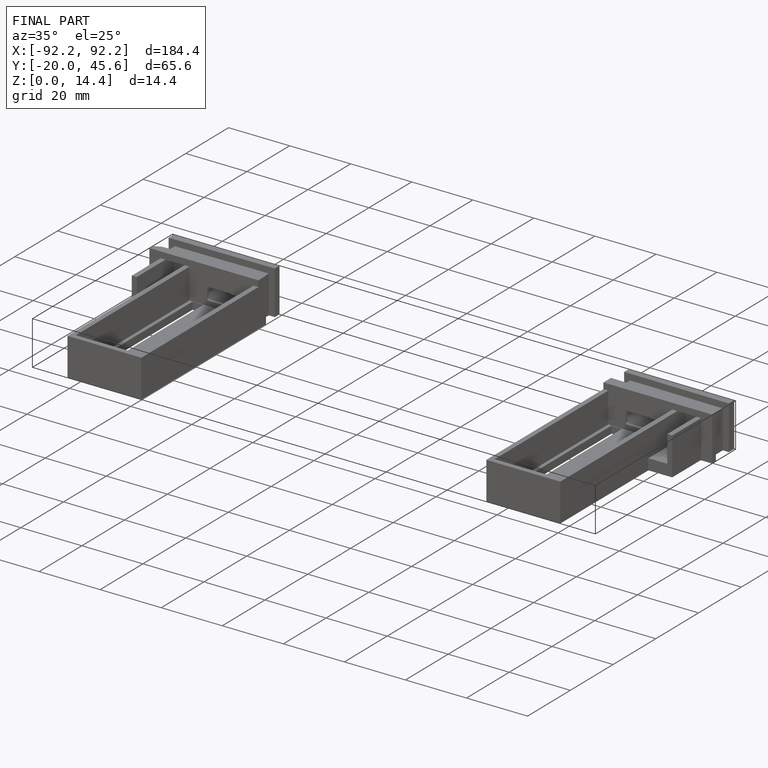
[diagram: finished part — iso view with bounding-box wireframe]
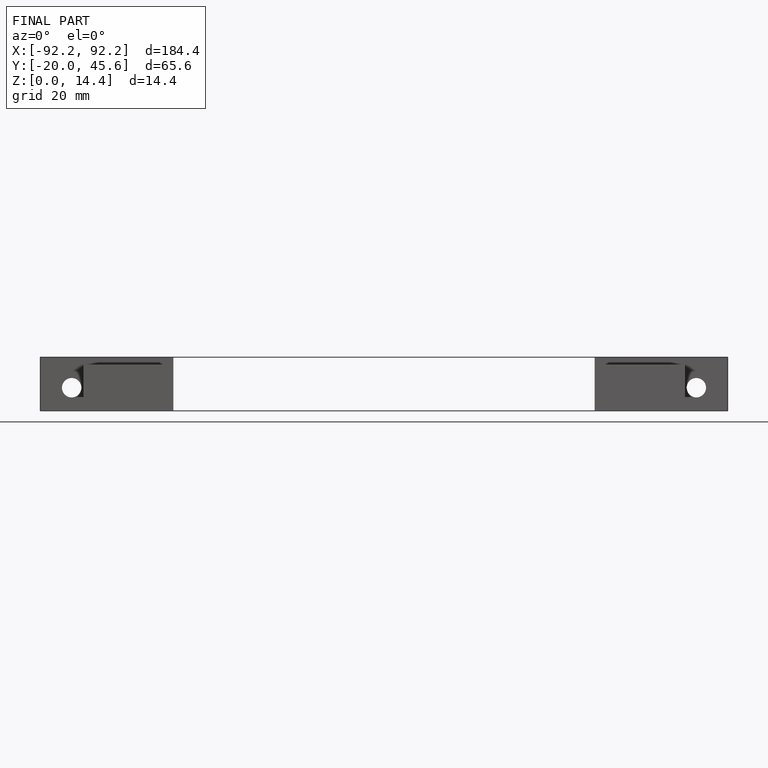
[diagram: finished part — front view with bounding-box wireframe]
